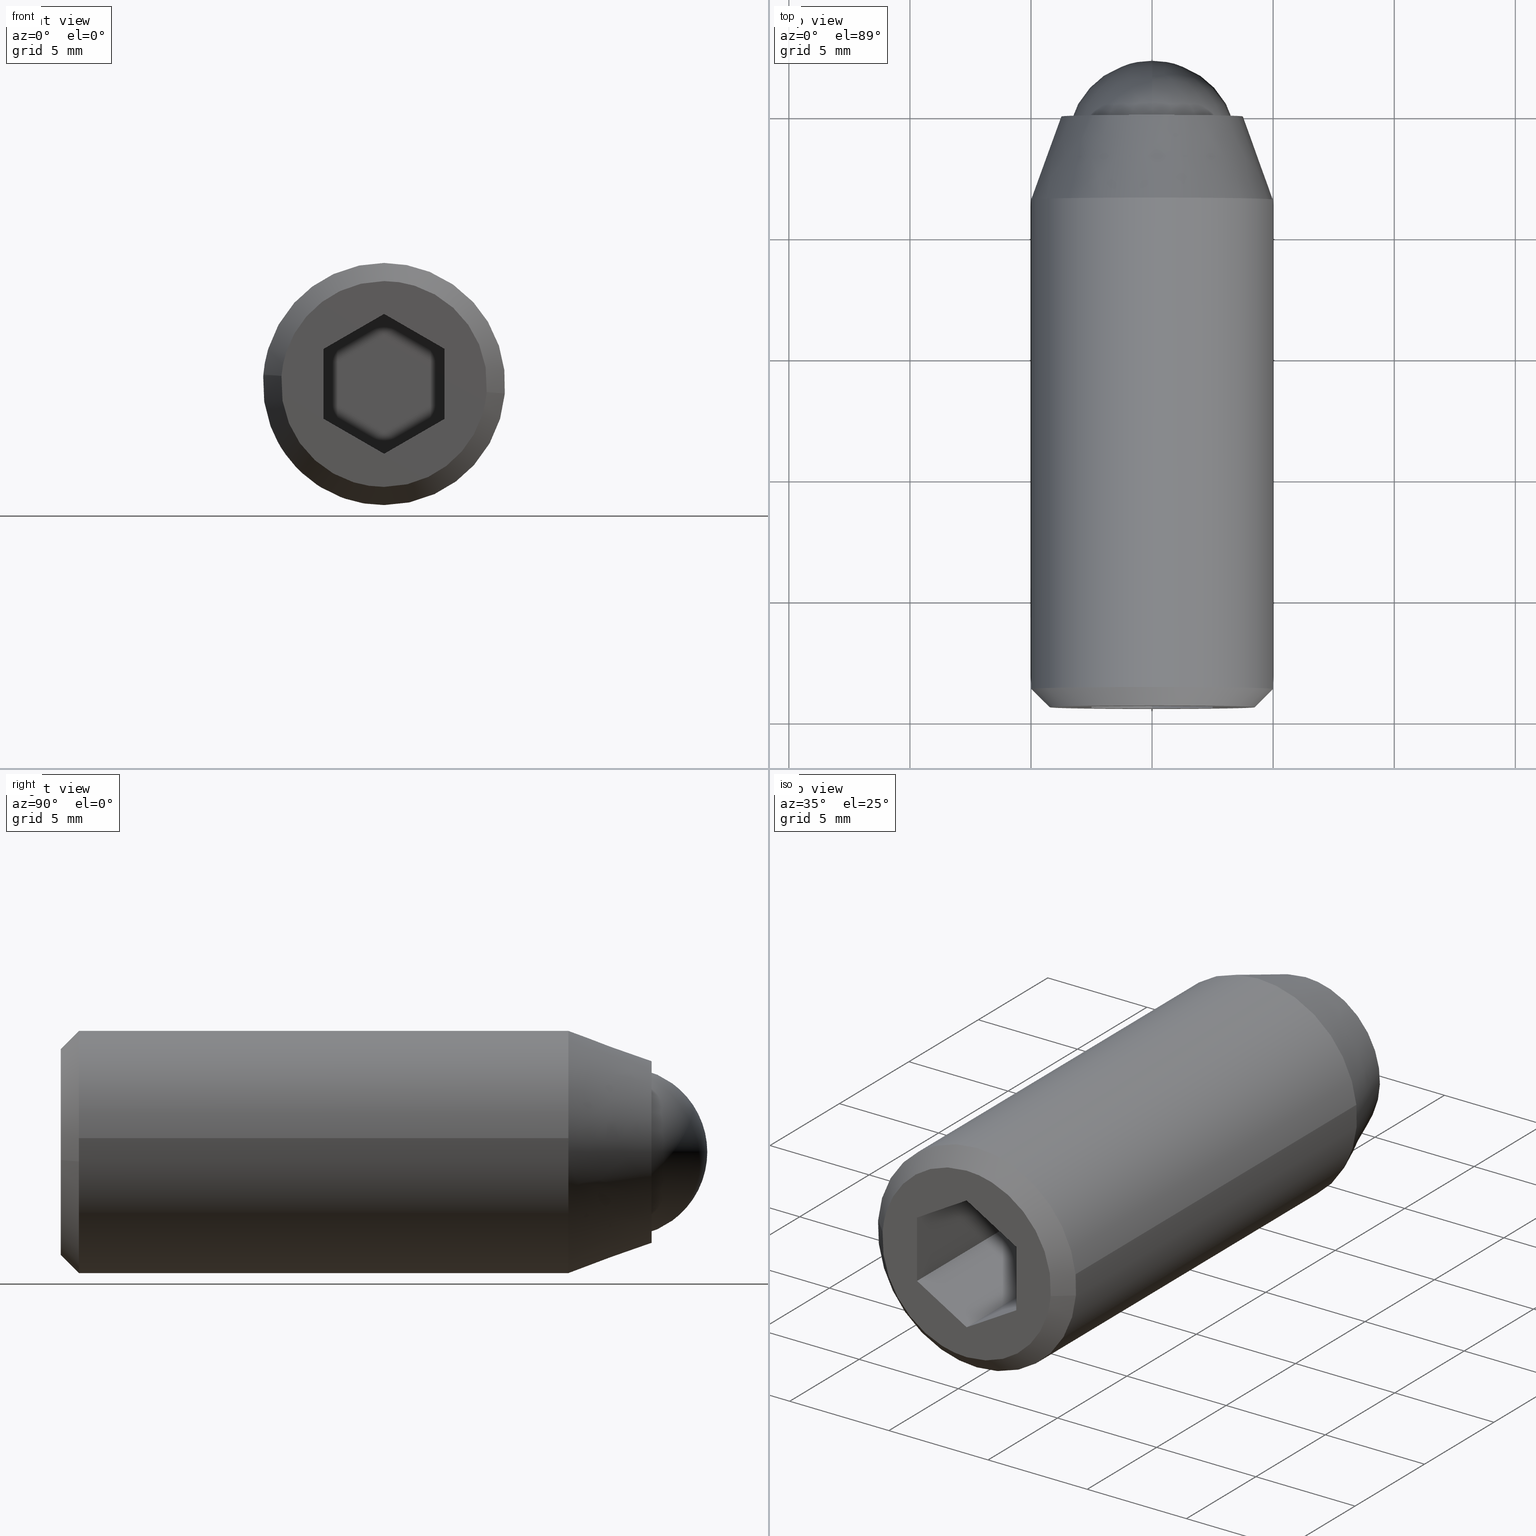
[diagram: canonical four-view strip — front | top / right | iso, engineering-drawing reading convention]
A machine part, canonical four-view strip (front | top / right | iso — engineering-drawing reading convention). The complete STEP part file that produces these views, byte-faithful:
ISO-10303-21;
HEADER;
/****************************************************************
 * Generated by software with PDE/Lib inside                    *
 * PDElib Version 4.4.1-0003, patched  Thursday August 19 11:58 *
 * International Technegroup Inc. (www.iti-oh.com)              *
 ****************************************************************/
FILE_DESCRIPTION((''),'2;1');
FILE_NAME('','2005-07-15T11:45:33',(''),(''),'','CADfix','');
FILE_SCHEMA(('AUTOMOTIVE_DESIGN'));
ENDSEC;
DATA;
#5=APPLICATION_CONTEXT('automotive design');
#6=APPLICATION_PROTOCOL_DEFINITION('Draft International Standard','automotive_design',1998,#5);
#7=PRODUCT_CONTEXT('None',#5,'mechanical');
#8=PRODUCT('body','','None',(#7));
#9=PRODUCT_RELATED_PRODUCT_CATEGORY('part','description',(#8));
#10=PRODUCT_DEFINITION_FORMATION('None','None',#8);
#11=PRODUCT_DEFINITION_CONTEXT('part definition',#5,'design');
#12=PRODUCT_DEFINITION('None','None',#10,#11);
#18=(NAMED_UNIT(*)PLANE_ANGLE_UNIT()SI_UNIT($,.RADIAN.));
#19=DIMENSIONAL_EXPONENTS(0.0,0.0,0.0,0.0,0.0,0.0,0.0);
#20=PLANE_ANGLE_MEASURE_WITH_UNIT(PLANE_ANGLE_MEASURE(0.017453292500000),#18);
#24=(CONVERSION_BASED_UNIT('DEGREE',#20)NAMED_UNIT(#19)PLANE_ANGLE_UNIT());
#28=(NAMED_UNIT(*)SI_UNIT($,.STERADIAN.)SOLID_ANGLE_UNIT());
#32=(LENGTH_UNIT()NAMED_UNIT(*)SI_UNIT(.MILLI.,.METRE.));
#34=UNCERTAINTY_MEASURE_WITH_UNIT(LENGTH_MEASURE(0.001000000000000),#32,'DISTANCE_ACCURACY_VALUE','');
#36=(GEOMETRIC_REPRESENTATION_CONTEXT(3)GLOBAL_UNCERTAINTY_ASSIGNED_CONTEXT((#34))GLOBAL_UNIT_ASSIGNED_CONTEXT((#24,#28,#32))REPRESENTATION_CONTEXT('None','None'));
#37=AXIS2_PLACEMENT_3D('',#38,#39,#40);
#38=CARTESIAN_POINT('',(0.0,0.0,0.0));
#39=DIRECTION('',(0.0,0.0,1.0));
#40=DIRECTION('',(1.0,0.0,0.0));
#41=ADVANCED_BREP_SHAPE_REPRESENTATION('',(#37,#949,#1160),#36);
#42=PRODUCT_DEFINITION_SHAPE('','',#12);
#43=SHAPE_DEFINITION_REPRESENTATION(#42,#41);
#44=CARTESIAN_POINT('',(-3.475533342272832,0.125000000000000,0.413119821298655));
#45=CARTESIAN_POINT('',(-3.487356654070120,0.125000000000000,0.313651550232922));
#46=CARTESIAN_POINT('',(-3.493471794476533,0.125000000000000,0.213669888371999));
#47=CARTESIAN_POINT('',(-3.707141682848533,0.125000000000000,-3.279801906104533));
#48=CARTESIAN_POINT('',(-0.213669888371999,0.125000000000000,-3.493471794476533));
#49=CARTESIAN_POINT('',(3.279801906104533,0.125000000000000,-3.707141682848533));
#50=CARTESIAN_POINT('',(3.493471794476533,0.125000000000000,-0.213669888371999));
#51=CARTESIAN_POINT('',(-3.475533342272832,-5.128125000000002,0.413119821298655));
#52=CARTESIAN_POINT('',(-3.487356654070120,-5.128125000000001,0.313651550232922));
#53=CARTESIAN_POINT('',(-3.493471794476533,-5.128125000000001,0.213669888371999));
#54=CARTESIAN_POINT('',(-3.707141682848533,-5.128125000000001,-3.279801906104533));
#55=CARTESIAN_POINT('',(-0.213669888371999,-5.128125000000001,-3.493471794476533));
#56=CARTESIAN_POINT('',(3.279801906104533,-5.128125000000001,-3.707141682848533));
#57=CARTESIAN_POINT('',(3.493471794476533,-5.128125000000001,-0.213669888371999));
#65=(BOUNDED_SURFACE()B_SPLINE_SURFACE(2,1,((#44,#51),(#45,#52),(#46,#53),(#47,#54),(#48,#55),(#49,#56),(#50,#57)),.UNSPECIFIED.,.F.,.F.,.U.)B_SPLINE_SURFACE_WITH_KNOTS((3,2,2,3),(2,2),(0.0,0.231959594928934,6.030949468152262,11.829939341375590),(0.0,5.253125000000002),.UNSPECIFIED.)GEOMETRIC_REPRESENTATION_ITEM()RATIONAL_B_SPLINE_SURFACE(((0.977505800795127,0.977505800795127),(0.988284271247462,0.988284271247462),(1.0,1.0),(0.707106781186548,0.707106781186548),(1.0,1.0),(0.707106781186548,0.707106781186548),(1.0,1.0)))REPRESENTATION_ITEM('')SURFACE());
#66=CARTESIAN_POINT('',(-3.475533838674169,-5.000000000000036,0.413115645083919));
#67=VERTEX_POINT('',#66);
#68=CARTESIAN_POINT('',(0.0,-5.0,-3.500000000000000));
#69=VERTEX_POINT('',#68);
#70=CARTESIAN_POINT('',(-3.475533838674170,-5.000000000000035,0.413115645083919));
#71=CARTESIAN_POINT('',(-3.500000000000000,-5.0,0.207282308599489));
#72=CARTESIAN_POINT('',(-3.500000000000000,-5.0,0.0));
#73=CARTESIAN_POINT('',(-3.500000000000000,-4.999999999999999,-3.500000000000000));
#74=CARTESIAN_POINT('',(0.0,-5.0,-3.500000000000000));
#82=(BOUNDED_CURVE()B_SPLINE_CURVE(2,(#70,#71,#72,#73,#74),.UNSPECIFIED.,.F.,.U.)B_SPLINE_CURVE_WITH_KNOTS((3,2,3),(0.229562676590638,0.250000000000000,0.500000000000000),.UNSPECIFIED.)CURVE()GEOMETRIC_REPRESENTATION_ITEM()RATIONAL_B_SPLINE_CURVE((0.956027152223570,0.976056186250801,1.0,0.707106781186547,1.0))REPRESENTATION_ITEM(''));
#83=EDGE_CURVE('',#67,#69,#82,.T.);
#84=ORIENTED_EDGE('',*,*,#83,.T.);
#85=CARTESIAN_POINT('',(3.493472099492551,-4.999999999999960,-0.213664901287368));
#86=VERTEX_POINT('',#85);
#87=CARTESIAN_POINT('',(0.0,-5.0,-3.500000000000000));
#88=CARTESIAN_POINT('',(3.292475943103280,-5.0,-3.500000000000000));
#89=CARTESIAN_POINT('',(3.493472099492551,-4.999999999999960,-0.213664901287368));
#97=(BOUNDED_CURVE()B_SPLINE_CURVE(2,(#87,#88,#89),.UNSPECIFIED.,.F.,.U.)B_SPLINE_CURVE_WITH_KNOTS((3,3),(0.500000000000000,0.739333208560145),.UNSPECIFIED.)CURVE()GEOMETRIC_REPRESENTATION_ITEM()RATIONAL_B_SPLINE_CURVE((1.0,0.719603704703471,0.976072569580511))REPRESENTATION_ITEM(''));
#98=EDGE_CURVE('',#69,#86,#97,.T.);
#99=ORIENTED_EDGE('',*,*,#98,.T.);
#100=CARTESIAN_POINT('',(3.493472095733746,-1.110223E-016,-0.213664962746162));
#101=VERTEX_POINT('',#100);
#102=CARTESIAN_POINT('',(3.493472095733746,-1.110223E-016,-0.213664962746162));
#103=CARTESIAN_POINT('',(3.493472099492551,-4.999999999999960,-0.213664901287368));
#104=QUASI_UNIFORM_CURVE('',1,(#102,#103),.UNSPECIFIED.,.F.,.U.);
#105=EDGE_CURVE('',#101,#86,#104,.T.);
#106=ORIENTED_EDGE('',*,*,#105,.F.);
#107=CARTESIAN_POINT('',(0.0,0.0,-3.500000000000000));
#108=VERTEX_POINT('',#107);
#109=CARTESIAN_POINT('',(0.0,0.0,-3.500000000000000));
#110=CARTESIAN_POINT('',(3.292475885072275,0.0,-3.500000000000000));
#111=CARTESIAN_POINT('',(3.493472095733746,-1.110223E-016,-0.213664962746162));
#119=(BOUNDED_CURVE()B_SPLINE_CURVE(2,(#109,#110,#111),.UNSPECIFIED.,.F.,.U.)B_SPLINE_CURVE_WITH_KNOTS((3,3),(0.500000000000000,0.739333205524620),.UNSPECIFIED.)CURVE()GEOMETRIC_REPRESENTATION_ITEM()RATIONAL_B_SPLINE_CURVE((1.0,0.719603708259810,0.976072563074789))REPRESENTATION_ITEM(''));
#120=EDGE_CURVE('',#108,#101,#119,.T.);
#121=ORIENTED_EDGE('',*,*,#120,.F.);
#122=CARTESIAN_POINT('',(-3.475533832542125,-1.135771E-016,0.413115696673206));
#123=VERTEX_POINT('',#122);
#124=CARTESIAN_POINT('',(-3.475533832542125,-1.135771E-016,0.413115696673206));
#125=CARTESIAN_POINT('',(-3.500000000000000,0.0,0.207282334666821));
#126=CARTESIAN_POINT('',(-3.500000000000000,0.0,0.0));
#127=CARTESIAN_POINT('',(-3.500000000000000,0.0,-3.500000000000000));
#128=CARTESIAN_POINT('',(0.0,0.0,-3.500000000000000));
#136=(BOUNDED_CURVE()B_SPLINE_CURVE(2,(#124,#125,#126,#127,#128),.UNSPECIFIED.,.F.,.U.)B_SPLINE_CURVE_WITH_KNOTS((3,2,3),(0.229562674082027,0.250000000000000,0.500000000000000),.UNSPECIFIED.)CURVE()GEOMETRIC_REPRESENTATION_ITEM()RATIONAL_B_SPLINE_CURVE((0.956027147306581,0.976056183311781,1.0,0.707106781186547,1.0))REPRESENTATION_ITEM(''));
#137=EDGE_CURVE('',#123,#108,#136,.T.);
#138=ORIENTED_EDGE('',*,*,#137,.F.);
#139=CARTESIAN_POINT('',(-3.475533832542125,-1.135771E-016,0.413115696673206));
#140=CARTESIAN_POINT('',(-3.475533838674169,-5.000000000000036,0.413115645083919));
#141=QUASI_UNIFORM_CURVE('',1,(#139,#140),.UNSPECIFIED.,.F.,.U.);
#142=EDGE_CURVE('',#123,#67,#141,.T.);
#143=ORIENTED_EDGE('',*,*,#142,.T.);
#144=EDGE_LOOP('',(#84,#99,#106,#121,#138,#143));
#145=FACE_OUTER_BOUND('',#144,.T.);
#146=ADVANCED_FACE('',(#145),#65,.F.);
#147=CARTESIAN_POINT('',(3.493471794476533,0.125000000000000,-0.213669888371999));
#148=CARTESIAN_POINT('',(3.707141682848533,0.125000000000000,3.279801906104533));
#149=CARTESIAN_POINT('',(0.213669888371999,0.125000000000000,3.493471794476533));
#150=CARTESIAN_POINT('',(-3.085402217938253,0.125000000000000,3.695251688563845));
#151=CARTESIAN_POINT('',(-3.475533342272832,0.125000000000000,0.413119821298655));
#152=CARTESIAN_POINT('',(3.493471794476533,-5.128125000000001,-0.213669888371999));
#153=CARTESIAN_POINT('',(3.707141682848533,-5.128125000000001,3.279801906104533));
#154=CARTESIAN_POINT('',(0.213669888371999,-5.128125000000001,3.493471794476533));
#155=CARTESIAN_POINT('',(-3.085402217938253,-5.128125000000000,3.695251688563845));
#156=CARTESIAN_POINT('',(-3.475533342272832,-5.128125000000002,0.413119821298655));
#164=(BOUNDED_SURFACE()B_SPLINE_SURFACE(2,1,((#147,#152),(#148,#153),(#149,#154),(#150,#155),(#151,#156)),.UNSPECIFIED.,.F.,.F.,.U.)B_SPLINE_SURFACE_WITH_KNOTS((3,2,3),(2,2),(0.0,5.798989873223329,11.366020151517720),(0.0,5.253125000000002),.UNSPECIFIED.)GEOMETRIC_REPRESENTATION_ITEM()RATIONAL_B_SPLINE_SURFACE(((1.0,1.0),(0.707106781186548,0.707106781186548),(1.0,1.0),(0.718822509939086,0.718822509939086),(0.977505800795127,0.977505800795127)))REPRESENTATION_ITEM('')SURFACE());
#165=CARTESIAN_POINT('',(0.0,-5.0,3.500000000000000));
#166=VERTEX_POINT('',#165);
#167=CARTESIAN_POINT('',(0.0,-5.0,3.500000000000000));
#168=CARTESIAN_POINT('',(-3.108614602445917,-5.000000000000001,3.500000000000000));
#169=CARTESIAN_POINT('',(-3.475533838674170,-5.000000000000035,0.413115645083919));
#177=(BOUNDED_CURVE()B_SPLINE_CURVE(2,(#167,#168,#169),.UNSPECIFIED.,.F.,.U.)B_SPLINE_CURVE_WITH_KNOTS((3,3),(0.0,0.229562676590638),.UNSPECIFIED.)CURVE()GEOMETRIC_REPRESENTATION_ITEM()RATIONAL_B_SPLINE_CURVE((1.0,0.731050594935746,0.956027152223570))REPRESENTATION_ITEM(''));
#178=EDGE_CURVE('',#166,#67,#177,.T.);
#179=ORIENTED_EDGE('',*,*,#178,.T.);
#180=ORIENTED_EDGE('',*,*,#142,.F.);
#181=CARTESIAN_POINT('',(0.0,0.0,3.500000000000000));
#182=VERTEX_POINT('',#181);
#183=CARTESIAN_POINT('',(0.0,0.0,3.500000000000000));
#184=CARTESIAN_POINT('',(-3.108614555978199,0.0,3.500000000000000));
#185=CARTESIAN_POINT('',(-3.475533832542125,-1.135771E-016,0.413115696673206));
#193=(BOUNDED_CURVE()B_SPLINE_CURVE(2,(#183,#184,#185),.UNSPECIFIED.,.F.,.U.)B_SPLINE_CURVE_WITH_KNOTS((3,3),(0.0,0.229562674082027),.UNSPECIFIED.)CURVE()GEOMETRIC_REPRESENTATION_ITEM()RATIONAL_B_SPLINE_CURVE((1.0,0.731050597874766,0.956027147306581))REPRESENTATION_ITEM(''));
#194=EDGE_CURVE('',#182,#123,#193,.T.);
#195=ORIENTED_EDGE('',*,*,#194,.F.);
#196=CARTESIAN_POINT('',(3.493472095733746,-1.110223E-016,-0.213664962746162));
#197=CARTESIAN_POINT('',(3.500000000000000,0.0,-0.106932201826920));
#198=CARTESIAN_POINT('',(3.500000000000000,0.0,0.0));
#199=CARTESIAN_POINT('',(3.500000000000000,0.0,3.500000000000000));
#200=CARTESIAN_POINT('',(0.0,0.0,3.500000000000000));
#208=(BOUNDED_CURVE()B_SPLINE_CURVE(2,(#196,#197,#198,#199,#200),.UNSPECIFIED.,.F.,.U.)B_SPLINE_CURVE_WITH_KNOTS((3,2,3),(0.739333205524620,0.750000000000000,1.0),.UNSPECIFIED.)CURVE()GEOMETRIC_REPRESENTATION_ITEM()RATIONAL_B_SPLINE_CURVE((0.976072563074789,0.987503072926737,1.0,0.707106781186547,1.0))REPRESENTATION_ITEM(''));
#209=EDGE_CURVE('',#101,#182,#208,.T.);
#210=ORIENTED_EDGE('',*,*,#209,.F.);
#211=ORIENTED_EDGE('',*,*,#105,.T.);
#212=CARTESIAN_POINT('',(3.493472099492551,-4.999999999999960,-0.213664901287368));
#213=CARTESIAN_POINT('',(3.500000000000000,-5.000000000000001,-0.106932171011368));
#214=CARTESIAN_POINT('',(3.500000000000000,-5.0,0.0));
#215=CARTESIAN_POINT('',(3.500000000000000,-4.999999999999999,3.500000000000000));
#216=CARTESIAN_POINT('',(0.0,-5.0,3.500000000000000));
#224=(BOUNDED_CURVE()B_SPLINE_CURVE(2,(#212,#213,#214,#215,#216),.UNSPECIFIED.,.F.,.U.)B_SPLINE_CURVE_WITH_KNOTS((3,2,3),(0.739333208560145,0.750000000000000,1.0),.UNSPECIFIED.)CURVE()GEOMETRIC_REPRESENTATION_ITEM()RATIONAL_B_SPLINE_CURVE((0.976072569580511,0.987503076483076,1.0,0.707106781186547,1.0))REPRESENTATION_ITEM(''));
#225=EDGE_CURVE('',#86,#166,#224,.T.);
#226=ORIENTED_EDGE('',*,*,#225,.T.);
#227=EDGE_LOOP('',(#179,#180,#195,#210,#211,#226));
#228=FACE_OUTER_BOUND('',#227,.T.);
#229=ADVANCED_FACE('',(#228),#164,.F.);
#230=CARTESIAN_POINT('',(-3.015807974484926,0.085858675000000,-2.175776602395827));
#231=CARTESIAN_POINT('',(-1.985204626224891,0.085858675000000,-3.604278863515390));
#232=CARTESIAN_POINT('',(-0.227024256395250,0.085858675000000,-3.711813781631319));
#233=CARTESIAN_POINT('',(3.484789525236069,0.085858675000000,-3.938838038026567));
#234=CARTESIAN_POINT('',(3.711813781631318,0.085858675000000,-0.227024256395250));
#235=CARTESIAN_POINT('',(3.938838038026567,0.085858675000000,3.484789525236068));
#236=CARTESIAN_POINT('',(0.227024256395250,0.085858675000000,3.711813781631317));
#237=CARTESIAN_POINT('',(-3.484789525236069,0.085858675000000,3.938838038026567));
#238=CARTESIAN_POINT('',(-3.711813781631318,0.085858675000000,0.227024256395249));
#239=CARTESIAN_POINT('',(-4.080844362112899,-3.522352141875000,-2.944154852107463));
#240=CARTESIAN_POINT('',(-2.686282142334985,-3.522352141875000,-4.877134487374501));
#241=CARTESIAN_POINT('',(-0.307198158706261,-3.522352141875000,-5.022645497371284));
#242=CARTESIAN_POINT('',(4.715447338665022,-3.522352141875000,-5.329843656077545));
#243=CARTESIAN_POINT('',(5.022645497371284,-3.522352141875000,-0.307198158706262));
#244=CARTESIAN_POINT('',(5.329843656077545,-3.522352141875000,4.715447338665022));
#245=CARTESIAN_POINT('',(0.307198158706261,-3.522352141875000,5.022645497371283));
#246=CARTESIAN_POINT('',(-4.715447338665022,-3.522352141875000,5.329843656077543));
#247=CARTESIAN_POINT('',(-5.022645497371284,-3.522352141875000,0.307198158706260));
#255=(BOUNDED_SURFACE()B_SPLINE_SURFACE(2,1,((#230,#239),(#231,#240),(#232,#241),(#233,#242),(#234,#243),(#235,#244),(#236,#245),(#237,#246),(#238,#247)),.UNSPECIFIED.,.F.,.F.,.U.)B_SPLINE_SURFACE_WITH_KNOTS((3,2,2,2,3),(2,2),(0.0,4.668911721678933,13.006254081819881,21.343596441960841,29.680938802101789),(0.0,3.839777720209247),.UNSPECIFIED.)GEOMETRIC_REPRESENTATION_ITEM()RATIONAL_B_SPLINE_SURFACE(((0.855662221768731,0.855662221768731),(0.835979797464467,0.835979797464467),(1.0,1.0),(0.707106781186548,0.707106781186548),(1.0,1.0),(0.707106781186548,0.707106781186548),(1.0,1.0),(0.707106781186548,0.707106781186548),(1.0,1.0)))REPRESENTATION_ITEM('')SURFACE());
#256=CARTESIAN_POINT('',(-3.041150898637995,-4.158979E-013,-2.194060439394151));
#257=VERTEX_POINT('',#256);
#258=CARTESIAN_POINT('',(0.0,0.0,-3.750000000000001));
#259=VERTEX_POINT('',#258);
#260=CARTESIAN_POINT('',(-3.041150898637995,-4.158979E-013,-2.194060439394150));
#261=CARTESIAN_POINT('',(-1.918606983585663,0.0,-3.750000000000000));
#262=CARTESIAN_POINT('',(0.0,0.0,-3.750000000000001));
#270=(BOUNDED_CURVE()B_SPLINE_CURVE(2,(#260,#261,#262),.UNSPECIFIED.,.F.,.U.)B_SPLINE_CURVE_WITH_KNOTS((3,3),(0.850743050382329,1.0),.UNSPECIFIED.)CURVE()GEOMETRIC_REPRESENTATION_ITEM()RATIONAL_B_SPLINE_CURVE((0.859068214727195,0.825134606384812,1.0))REPRESENTATION_ITEM(''));
#271=EDGE_CURVE('',#257,#259,#270,.T.);
#272=ORIENTED_EDGE('',*,*,#271,.T.);
#273=CARTESIAN_POINT('',(0.0,0.0,3.749999999999999));
#274=VERTEX_POINT('',#273);
#275=CARTESIAN_POINT('',(0.0,0.0,-3.750000000000001));
#276=CARTESIAN_POINT('',(3.750000000000000,0.0,-3.750000000000002));
#277=CARTESIAN_POINT('',(3.750000000000000,0.0,-7.898711E-016));
#278=CARTESIAN_POINT('',(3.750000000000000,0.0,3.749999999999999));
#279=CARTESIAN_POINT('',(0.0,0.0,3.749999999999999));
#287=(BOUNDED_CURVE()B_SPLINE_CURVE(2,(#275,#276,#277,#278,#279),.UNSPECIFIED.,.F.,.U.)B_SPLINE_CURVE_WITH_KNOTS((3,2,3),(0.0,0.250000000000000,0.500000000000000),.UNSPECIFIED.)CURVE()GEOMETRIC_REPRESENTATION_ITEM()RATIONAL_B_SPLINE_CURVE((1.0,0.707106781186547,1.0,0.707106781186547,1.0))REPRESENTATION_ITEM(''));
#288=EDGE_CURVE('',#259,#274,#287,.T.);
#289=ORIENTED_EDGE('',*,*,#288,.T.);
#290=CARTESIAN_POINT('',(-3.743005494082165,-5.431509E-012,0.228932023285429));
#291=VERTEX_POINT('',#290);
#292=CARTESIAN_POINT('',(0.0,0.0,3.749999999999999));
#293=CARTESIAN_POINT('',(-3.527647750840481,0.0,3.749999999999998));
#294=CARTESIAN_POINT('',(-3.743005494082165,-5.431509E-012,0.228932023285429));
#302=(BOUNDED_CURVE()B_SPLINE_CURVE(2,(#292,#293,#294),.UNSPECIFIED.,.F.,.U.)B_SPLINE_CURVE_WITH_KNOTS((3,3),(0.500000000000000,0.739332962239240),.UNSPECIFIED.)CURVE()GEOMETRIC_REPRESENTATION_ITEM()RATIONAL_B_SPLINE_CURVE((1.0,0.719603993286362,0.976072041667355))REPRESENTATION_ITEM(''));
#303=EDGE_CURVE('',#274,#291,#302,.T.);
#304=ORIENTED_EDGE('',*,*,#303,.T.);
#305=CARTESIAN_POINT('',(-4.990674234761062,-3.434346994595417,0.305238698078963));
#306=VERTEX_POINT('',#305);
#307=CARTESIAN_POINT('',(-3.743005494082165,-5.431509E-012,0.228932023285429));
#308=CARTESIAN_POINT('',(-4.990674234761062,-3.434346994595417,0.305238698078963));
#309=QUASI_UNIFORM_CURVE('',1,(#307,#308),.UNSPECIFIED.,.F.,.U.);
#310=EDGE_CURVE('',#291,#306,#309,.T.);
#311=ORIENTED_EDGE('',*,*,#310,.T.);
#312=CARTESIAN_POINT('',(0.0,-3.434347000000000,4.999999999999999));
#313=VERTEX_POINT('',#312);
#314=CARTESIAN_POINT('',(0.0,-3.434347000000000,4.999999999999999));
#315=CARTESIAN_POINT('',(-4.703534110934704,-3.434347000000000,4.999999999999999));
#316=CARTESIAN_POINT('',(-4.990674234761062,-3.434346994595417,0.305238698078963));
#324=(BOUNDED_CURVE()B_SPLINE_CURVE(2,(#314,#315,#316),.UNSPECIFIED.,.F.,.U.)B_SPLINE_CURVE_WITH_KNOTS((3,3),(0.500000000000000,0.739333100519220),.UNSPECIFIED.)CURVE()GEOMETRIC_REPRESENTATION_ITEM()RATIONAL_B_SPLINE_CURVE((1.0,0.719603831281288,0.976072338027853))REPRESENTATION_ITEM(''));
#325=EDGE_CURVE('',#313,#306,#324,.T.);
#326=ORIENTED_EDGE('',*,*,#325,.F.);
#327=CARTESIAN_POINT('',(4.967346893417139,-3.434347000000000,0.570495258870046));
#328=VERTEX_POINT('',#327);
#329=CARTESIAN_POINT('',(4.967346893417139,-3.434347000000000,0.570495258870046));
#330=CARTESIAN_POINT('',(4.458622315056616,-3.434347000000000,4.999999999999999));
#331=CARTESIAN_POINT('',(0.0,-3.434347000000000,4.999999999999999));
#339=(BOUNDED_CURVE()B_SPLINE_CURVE(2,(#329,#330,#331),.UNSPECIFIED.,.F.,.U.)B_SPLINE_CURVE_WITH_KNOTS((3,3),(0.269767481110062,0.500000000000000),.UNSPECIFIED.)CURVE()GEOMETRIC_REPRESENTATION_ITEM()RATIONAL_B_SPLINE_CURVE((0.957344278464731,0.730265825867189,1.0))REPRESENTATION_ITEM(''));
#340=EDGE_CURVE('',#328,#313,#339,.T.);
#341=ORIENTED_EDGE('',*,*,#340,.F.);
#342=CARTESIAN_POINT('',(0.0,-3.434347000000000,-5.000000000000001));
#343=VERTEX_POINT('',#342);
#344=CARTESIAN_POINT('',(0.0,-3.434347000000000,-5.000000000000001));
#345=CARTESIAN_POINT('',(5.000000000000001,-3.434347000000000,-5.000000000000002));
#346=CARTESIAN_POINT('',(5.0,-3.434347000000000,-7.898711E-016));
#347=CARTESIAN_POINT('',(5.0,-3.434347000000000,0.286182102906041));
#348=CARTESIAN_POINT('',(4.967346893417139,-3.434347000000000,0.570495258870046));
#356=(BOUNDED_CURVE()B_SPLINE_CURVE(2,(#344,#345,#346,#347,#348),.UNSPECIFIED.,.F.,.U.)B_SPLINE_CURVE_WITH_KNOTS((3,2,3),(0.0,0.250000000000000,0.269767481110062),.UNSPECIFIED.)CURVE()GEOMETRIC_REPRESENTATION_ITEM()RATIONAL_B_SPLINE_CURVE((1.0,0.707106781186548,1.0,0.976840955319359,0.957344278464731))REPRESENTATION_ITEM(''));
#357=EDGE_CURVE('',#343,#328,#356,.T.);
#358=ORIENTED_EDGE('',*,*,#357,.F.);
#359=CARTESIAN_POINT('',(-4.054867864852410,-3.434347000000233,-2.925413919189575));
#360=VERTEX_POINT('',#359);
#361=CARTESIAN_POINT('',(-4.054867864852410,-3.434347000000233,-2.925413919189575));
#362=CARTESIAN_POINT('',(-2.558142644784862,-3.434346999999999,-5.000000000000002));
#363=CARTESIAN_POINT('',(0.0,-3.434347000000000,-5.000000000000001));
#371=(BOUNDED_CURVE()B_SPLINE_CURVE(2,(#361,#362,#363),.UNSPECIFIED.,.F.,.U.)B_SPLINE_CURVE_WITH_KNOTS((3,3),(0.850743050382138,1.0),.UNSPECIFIED.)CURVE()GEOMETRIC_REPRESENTATION_ITEM()RATIONAL_B_SPLINE_CURVE((0.859068214727282,0.825134606384588,1.0))REPRESENTATION_ITEM(''));
#372=EDGE_CURVE('',#360,#343,#371,.T.);
#373=ORIENTED_EDGE('',*,*,#372,.F.);
#374=CARTESIAN_POINT('',(-3.041150898637995,-4.158979E-013,-2.194060439394151));
#375=CARTESIAN_POINT('',(-4.054867864852410,-3.434347000000233,-2.925413919189575));
#376=QUASI_UNIFORM_CURVE('',1,(#374,#375),.UNSPECIFIED.,.F.,.U.);
#377=EDGE_CURVE('',#257,#360,#376,.T.);
#378=ORIENTED_EDGE('',*,*,#377,.F.);
#379=EDGE_LOOP('',(#272,#289,#304,#311,#326,#341,#358,#373,#378));
#380=FACE_OUTER_BOUND('',#379,.T.);
#381=ADVANCED_FACE('',(#380),#255,.T.);
#382=CARTESIAN_POINT('',(-3.711813781631318,0.085858675000000,0.227024256395249));
#383=CARTESIAN_POINT('',(-3.792896532417209,0.085858675000000,-1.098667000558672));
#384=CARTESIAN_POINT('',(-3.015807974484926,0.085858675000000,-2.175776602395827));
#385=CARTESIAN_POINT('',(-5.022645497371284,-3.522352141875000,0.307198158706260));
#386=CARTESIAN_POINT('',(-5.132362723802361,-3.522352141875001,-1.486662636680336));
#387=CARTESIAN_POINT('',(-4.080844362112899,-3.522352141875000,-2.944154852107463));
#395=(BOUNDED_SURFACE()B_SPLINE_SURFACE(2,1,((#382,#385),(#383,#386),(#384,#387)),.UNSPECIFIED.,.F.,.F.,.U.)B_SPLINE_SURFACE_WITH_KNOTS((3,3),(2,2),(0.0,3.659389569803642),(0.0,3.839777720209246),.UNSPECIFIED.)GEOMETRIC_REPRESENTATION_ITEM()RATIONAL_B_SPLINE_SURFACE(((1.0,1.0),(0.871126983722081,0.871126983722081),(0.855662221768731,0.855662221768731)))REPRESENTATION_ITEM('')SURFACE());
#396=CARTESIAN_POINT('',(-3.743005494082165,-5.431509E-012,0.228932023285429));
#397=CARTESIAN_POINT('',(-3.750000000000001,0.0,0.114572862399386));
#398=CARTESIAN_POINT('',(-3.750000000000000,0.0,-7.898711E-016));
#399=CARTESIAN_POINT('',(-3.750000000000000,0.0,-1.211536420048224));
#400=CARTESIAN_POINT('',(-3.041150898637995,-4.158979E-013,-2.194060439394151));
#408=(BOUNDED_CURVE()B_SPLINE_CURVE(2,(#396,#397,#398,#399,#400),.UNSPECIFIED.,.F.,.U.)B_SPLINE_CURVE_WITH_KNOTS((3,2,3),(0.739332962239240,0.750000000000000,0.850743050382329),.UNSPECIFIED.)CURVE()GEOMETRIC_REPRESENTATION_ITEM()RATIONAL_B_SPLINE_CURVE((0.976072041667354,0.987502787900185,1.0,0.881972174801736,0.859068214727195))REPRESENTATION_ITEM(''));
#409=EDGE_CURVE('',#291,#257,#408,.T.);
#410=ORIENTED_EDGE('',*,*,#409,.T.);
#411=ORIENTED_EDGE('',*,*,#377,.T.);
#412=CARTESIAN_POINT('',(-4.990674234761062,-3.434346994595417,0.305238698078963));
#413=CARTESIAN_POINT('',(-4.999999999999999,-3.434347000000000,0.152761811148380));
#414=CARTESIAN_POINT('',(-5.0,-3.434347000000000,-7.898711E-016));
#415=CARTESIAN_POINT('',(-5.0,-3.434347000000000,-1.615381893394168));
#416=CARTESIAN_POINT('',(-4.054867864852411,-3.434347000000233,-2.925413919189575));
#424=(BOUNDED_CURVE()B_SPLINE_CURVE(2,(#412,#413,#414,#415,#416),.UNSPECIFIED.,.F.,.U.)B_SPLINE_CURVE_WITH_KNOTS((3,2,3),(0.739333100519220,0.750000000000000,0.850743050382138),.UNSPECIFIED.)CURVE()GEOMETRIC_REPRESENTATION_ITEM()RATIONAL_B_SPLINE_CURVE((0.976072338027853,0.987502949905259,1.0,0.881972174801959,0.859068214727281))REPRESENTATION_ITEM(''));
#425=EDGE_CURVE('',#306,#360,#424,.T.);
#426=ORIENTED_EDGE('',*,*,#425,.F.);
#427=ORIENTED_EDGE('',*,*,#310,.F.);
#428=EDGE_LOOP('',(#410,#411,#426,#427));
#429=FACE_OUTER_BOUND('',#428,.T.);
#430=ADVANCED_FACE('',(#429),#395,.T.);
#431=CARTESIAN_POINT('',(4.975395113979117,-2.928955674999999,0.500419776003076));
#432=CARTESIAN_POINT('',(4.971379498040641,-2.928955674999999,0.535383557648189));
#433=CARTESIAN_POINT('',(4.489075762930407,-2.928955674999998,4.734779799566036));
#434=CARTESIAN_POINT('',(0.305242697674285,-2.928955674999999,4.990673992109333));
#435=CARTESIAN_POINT('',(-4.685431294435048,-2.928955674999999,5.295916689783618));
#436=CARTESIAN_POINT('',(-4.992697433181544,-2.928955674999999,0.272159728579269));
#437=CARTESIAN_POINT('',(-4.994709792734736,-2.928955674999997,0.239257940718600));
#438=CARTESIAN_POINT('',(4.975395113979117,-24.168026108125002,0.500419776003076));
#439=CARTESIAN_POINT('',(4.971379498040641,-24.168026108125005,0.535383557648189));
#440=CARTESIAN_POINT('',(4.489075762930407,-24.168026108125002,4.734779799566036));
#441=CARTESIAN_POINT('',(0.305242697674285,-24.168026108125009,4.990673992109333));
#442=CARTESIAN_POINT('',(-4.685431294435048,-24.168026108125009,5.295916689783618));
#443=CARTESIAN_POINT('',(-4.992697433181544,-24.168026108125019,0.272159728579269));
#444=CARTESIAN_POINT('',(-4.994709792734736,-24.168026108124998,0.239257940718600));
#452=(BOUNDED_SURFACE()B_SPLINE_SURFACE(2,1,((#431,#438),(#432,#439),(#433,#440),(#434,#441),(#435,#442),(#436,#443),(#437,#444)),.UNSPECIFIED.,.F.,.F.,.U.)B_SPLINE_SURFACE_WITH_KNOTS((3,1,2,1,3),(2,2),(0.0,0.077881138398475,7.368039836164944,15.652311083626840,15.730187994129020),(0.0,21.239070433125018),.UNSPECIFIED.)GEOMETRIC_REPRESENTATION_ITEM()RATIONAL_B_SPLINE_SURFACE(((0.942326293549293,0.942326293549293),(0.940233622867946,0.940233622867946),(0.742253967444162,0.742253967444162),(1.0,1.0),(0.707106781186548,0.707106781186548),(1.002753364575697,1.002753364575697),(1.005506729151395,1.005506729151395)))REPRESENTATION_ITEM('')SURFACE());
#453=CARTESIAN_POINT('',(4.967345967176772,-23.649999999999999,0.570503323717449));
#454=VERTEX_POINT('',#453);
#455=CARTESIAN_POINT('',(0.0,-23.649999999999999,4.999999999999999));
#456=VERTEX_POINT('',#455);
#457=CARTESIAN_POINT('',(4.967345967176772,-23.650000000000006,0.570503323717449));
#458=CARTESIAN_POINT('',(4.458615028566292,-23.650000000000009,5.0));
#459=CARTESIAN_POINT('',(0.0,-23.649999999999999,4.999999999999999));
#467=(BOUNDED_CURVE()B_SPLINE_CURVE(2,(#457,#458,#459),.UNSPECIFIED.,.F.,.U.)B_SPLINE_CURVE_WITH_KNOTS((3,3),(0.269767755877675,0.500000000000000),.UNSPECIFIED.)CURVE()GEOMETRIC_REPRESENTATION_ITEM()RATIONAL_B_SPLINE_CURVE((0.957343736458560,0.730266147777471,1.0))REPRESENTATION_ITEM(''));
#468=EDGE_CURVE('',#454,#456,#467,.T.);
#469=ORIENTED_EDGE('',*,*,#468,.F.);
#470=CARTESIAN_POINT('',(4.967346893417139,-3.434347000000000,0.570495258870046));
#471=CARTESIAN_POINT('',(4.967345967176772,-23.649999999999999,0.570503323717449));
#472=QUASI_UNIFORM_CURVE('',1,(#470,#471),.UNSPECIFIED.,.F.,.U.);
#473=EDGE_CURVE('',#328,#454,#472,.T.);
#474=ORIENTED_EDGE('',*,*,#473,.F.);
#475=ORIENTED_EDGE('',*,*,#340,.T.);
#476=ORIENTED_EDGE('',*,*,#325,.T.);
#477=CARTESIAN_POINT('',(-4.990674023527537,-23.649999999999999,0.305242183990346));
#478=VERTEX_POINT('',#477);
#479=CARTESIAN_POINT('',(-4.990674234761062,-3.434346994595417,0.305238698078963));
#480=CARTESIAN_POINT('',(-4.990674023527537,-23.649999999999999,0.305242183990346));
#481=QUASI_UNIFORM_CURVE('',1,(#479,#480),.UNSPECIFIED.,.F.,.U.);
#482=EDGE_CURVE('',#306,#478,#481,.T.);
#483=ORIENTED_EDGE('',*,*,#482,.T.);
#484=CARTESIAN_POINT('',(-4.984586668668259,-23.649999999993430,0.392295478689817));
#485=VERTEX_POINT('',#484);
#486=CARTESIAN_POINT('',(-4.984586668668259,-23.649999999993430,0.392295478689817));
#487=CARTESIAN_POINT('',(-4.988010219821137,-23.650000000000002,0.348795136743886));
#488=CARTESIAN_POINT('',(-4.990674023527537,-23.650000000000002,0.305242183990346));
#496=(BOUNDED_CURVE()B_SPLINE_CURVE(2,(#486,#487,#488),.UNSPECIFIED.,.F.,.U.)B_SPLINE_CURVE_WITH_KNOTS((3,3),(0.736331300629323,0.739332997762028),.UNSPECIFIED.)CURVE()GEOMETRIC_REPRESENTATION_ITEM()RATIONAL_B_SPLINE_CURVE((0.969723356164627,0.972855512625487,0.976072117799462))REPRESENTATION_ITEM(''));
#497=EDGE_CURVE('',#485,#478,#496,.T.);
#498=ORIENTED_EDGE('',*,*,#497,.F.);
#499=CARTESIAN_POINT('',(0.0,-23.649999999999999,4.999999999999999));
#500=CARTESIAN_POINT('',(-4.621952458197871,-23.649999999999999,4.999999999999999));
#501=CARTESIAN_POINT('',(-4.984586668668259,-23.649999999993423,0.392295478689817));
#509=(BOUNDED_CURVE()B_SPLINE_CURVE(2,(#499,#500,#501),.UNSPECIFIED.,.F.,.U.)B_SPLINE_CURVE_WITH_KNOTS((3,3),(0.500000000000000,0.736331300629322),.UNSPECIFIED.)CURVE()GEOMETRIC_REPRESENTATION_ITEM()RATIONAL_B_SPLINE_CURVE((1.0,0.723120658609233,0.969723356164627))REPRESENTATION_ITEM(''));
#510=EDGE_CURVE('',#456,#485,#509,.T.);
#511=ORIENTED_EDGE('',*,*,#510,.F.);
#512=EDGE_LOOP('',(#469,#474,#475,#476,#483,#498,#511));
#513=FACE_OUTER_BOUND('',#512,.T.);
#514=ADVANCED_FACE('',(#513),#452,.T.);
#515=CARTESIAN_POINT('',(-4.990673992109334,-2.928955674999999,0.305242697674284));
#516=CARTESIAN_POINT('',(-5.295916689783620,-2.928955674999999,-4.685431294435050));
#517=CARTESIAN_POINT('',(-0.305242697674285,-2.928955674999999,-4.990673992109334));
#518=CARTESIAN_POINT('',(4.685431294435048,-2.928955674999999,-5.295916689783620));
#519=CARTESIAN_POINT('',(4.990673992109334,-2.928955674999999,-0.305242697674286));
#520=CARTESIAN_POINT('',(5.017518191973888,-2.928955674999998,0.133656090482733));
#521=CARTESIAN_POINT('',(4.967345967178567,-2.928955674999999,0.570503323701801));
#522=CARTESIAN_POINT('',(-4.990673992109334,-24.168026108125009,0.305242697674284));
#523=CARTESIAN_POINT('',(-5.295916689783620,-24.168026108125009,-4.685431294435050));
#524=CARTESIAN_POINT('',(-0.305242697674285,-24.168026108125009,-4.990673992109334));
#525=CARTESIAN_POINT('',(4.685431294435048,-24.168026108125009,-5.295916689783620));
#526=CARTESIAN_POINT('',(4.990673992109334,-24.168026108125009,-0.305242697674286));
#527=CARTESIAN_POINT('',(5.017518191973888,-24.168026108125009,0.133656090482733));
#528=CARTESIAN_POINT('',(4.967345967178567,-24.168026108125009,0.570503323701801));
#536=(BOUNDED_SURFACE()B_SPLINE_SURFACE(2,1,((#515,#522),(#516,#523),(#517,#524),(#518,#525),(#519,#526),(#520,#527),(#521,#528)),.UNSPECIFIED.,.F.,.F.,.U.)B_SPLINE_SURFACE_WITH_KNOTS((3,2,2,3),(2,2),(0.0,8.284271247461899,16.568542494923800,17.562655044619230),(0.0,21.239070433125011),.UNSPECIFIED.)GEOMETRIC_REPRESENTATION_ITEM()RATIONAL_B_SPLINE_SURFACE(((1.0,1.0),(0.707106781186548,0.707106781186548),(1.0,1.0),(0.707106781186548,0.707106781186548),(1.0,1.0),(0.964852813742386,0.964852813742386),(0.938140952186599,0.938140952186599)))REPRESENTATION_ITEM('')SURFACE());
#537=CARTESIAN_POINT('',(4.984586668668258,-23.649999999993430,-0.392295478689819));
#538=VERTEX_POINT('',#537);
#539=CARTESIAN_POINT('',(4.984586668668258,-23.649999999993430,-0.392295478689819));
#540=CARTESIAN_POINT('',(5.0,-23.650000000000009,-0.196450535088657));
#541=CARTESIAN_POINT('',(5.0,-23.649999999999999,-7.898711E-016));
#542=CARTESIAN_POINT('',(5.0,-23.650000000000009,0.286186175142261));
#543=CARTESIAN_POINT('',(4.967345967176772,-23.649999999999999,0.570503323717449));
#551=(BOUNDED_CURVE()B_SPLINE_CURVE(2,(#539,#540,#541,#542,#543),.UNSPECIFIED.,.F.,.U.)B_SPLINE_CURVE_WITH_KNOTS((3,2,3),(0.236331300629323,0.250000000000000,0.269767755877675),.UNSPECIFIED.)CURVE()GEOMETRIC_REPRESENTATION_ITEM()RATIONAL_B_SPLINE_CURVE((0.969723356164627,0.983986122577316,1.0,0.976840633409077,0.957343736458561))REPRESENTATION_ITEM(''));
#552=EDGE_CURVE('',#538,#454,#551,.T.);
#553=ORIENTED_EDGE('',*,*,#552,.F.);
#554=CARTESIAN_POINT('',(0.0,-23.649999999999999,-5.000000000000001));
#555=VERTEX_POINT('',#554);
#556=CARTESIAN_POINT('',(0.0,-23.649999999999999,-5.000000000000001));
#557=CARTESIAN_POINT('',(4.621952458197886,-23.650000000000006,-5.000000000000001));
#558=CARTESIAN_POINT('',(4.984586668668258,-23.649999999993426,-0.392295478689819));
#566=(BOUNDED_CURVE()B_SPLINE_CURVE(2,(#556,#557,#558),.UNSPECIFIED.,.F.,.U.)B_SPLINE_CURVE_WITH_KNOTS((3,3),(0.0,0.236331300629323),.UNSPECIFIED.)CURVE()GEOMETRIC_REPRESENTATION_ITEM()RATIONAL_B_SPLINE_CURVE((1.0,0.723120658609232,0.969723356164628))REPRESENTATION_ITEM(''));
#567=EDGE_CURVE('',#555,#538,#566,.T.);
#568=ORIENTED_EDGE('',*,*,#567,.F.);
#569=CARTESIAN_POINT('',(-4.990674023527537,-23.649999999999995,0.305242183990346));
#570=CARTESIAN_POINT('',(-5.000000000000001,-23.650000000000006,0.152763301368691));
#571=CARTESIAN_POINT('',(-5.0,-23.649999999999999,-7.898711E-016));
#572=CARTESIAN_POINT('',(-5.000000000000001,-23.649999999999999,-5.000000000000002));
#573=CARTESIAN_POINT('',(0.0,-23.649999999999999,-5.000000000000001));
#581=(BOUNDED_CURVE()B_SPLINE_CURVE(2,(#569,#570,#571,#572,#573),.UNSPECIFIED.,.F.,.U.)B_SPLINE_CURVE_WITH_KNOTS((3,2,3),(0.739332997762027,0.750000000000000,1.0),.UNSPECIFIED.)CURVE()GEOMETRIC_REPRESENTATION_ITEM()RATIONAL_B_SPLINE_CURVE((0.976072117799462,0.987502829517720,1.0,0.707106781186548,1.0))REPRESENTATION_ITEM(''));
#582=EDGE_CURVE('',#478,#555,#581,.T.);
#583=ORIENTED_EDGE('',*,*,#582,.F.);
#584=ORIENTED_EDGE('',*,*,#482,.F.);
#585=ORIENTED_EDGE('',*,*,#425,.T.);
#586=ORIENTED_EDGE('',*,*,#372,.T.);
#587=ORIENTED_EDGE('',*,*,#357,.T.);
#588=ORIENTED_EDGE('',*,*,#473,.T.);
#589=EDGE_LOOP('',(#553,#568,#583,#584,#585,#586,#587,#588));
#590=FACE_OUTER_BOUND('',#589,.T.);
#591=ADVANCED_FACE('',(#590),#536,.T.);
#592=CARTESIAN_POINT('',(4.218206468358295,-24.418750000000010,-0.331980048798447));
#593=CARTESIAN_POINT('',(3.886226419559848,-24.418750000000003,-4.550186517156742));
#594=CARTESIAN_POINT('',(-0.331980048798446,-24.418750000000010,-4.218206468358296));
#595=CARTESIAN_POINT('',(-4.550186517156740,-24.418750000000003,-3.886226419559850));
#596=CARTESIAN_POINT('',(-4.218206468358295,-24.418750000000010,0.331980048798446));
#597=CARTESIAN_POINT('',(5.003746173673326,-23.630781249999998,-0.393803364385248));
#598=CARTESIAN_POINT('',(4.609942809288079,-23.630781249999998,-5.397549538058574));
#599=CARTESIAN_POINT('',(-0.393803364385248,-23.630781249999998,-5.003746173673327));
#600=CARTESIAN_POINT('',(-5.397549538058574,-23.630781249999998,-4.609942809288080));
#601=CARTESIAN_POINT('',(-5.003746173673326,-23.630781249999998,0.393803364385247));
#609=(BOUNDED_SURFACE()B_SPLINE_SURFACE(2,1,((#592,#597),(#593,#598),(#594,#599),(#595,#600),(#596,#601)),.UNSPECIFIED.,.F.,.F.,.U.)B_SPLINE_SURFACE_WITH_KNOTS((3,2,3),(2,2),(0.0,8.316113915069339,16.632227830138682),(0.0,1.0),.UNSPECIFIED.)GEOMETRIC_REPRESENTATION_ITEM()RATIONAL_B_SPLINE_SURFACE(((1.0,1.0),(0.707106781186548,0.707106781186548),(1.0,1.0),(0.707106781186548,0.707106781186548),(1.0,1.0)))REPRESENTATION_ITEM('')SURFACE());
#610=ORIENTED_EDGE('',*,*,#567,.T.);
#611=CARTESIAN_POINT('',(4.236898668368168,-24.399999999994058,-0.333451156889005));
#612=VERTEX_POINT('',#611);
#613=CARTESIAN_POINT('',(4.236898668368168,-24.399999999994058,-0.333451156889005));
#614=CARTESIAN_POINT('',(4.984586668668258,-23.649999999993430,-0.392295478689819));
#615=QUASI_UNIFORM_CURVE('',1,(#613,#614),.UNSPECIFIED.,.F.,.U.);
#616=EDGE_CURVE('',#612,#538,#615,.T.);
#617=ORIENTED_EDGE('',*,*,#616,.F.);
#618=CARTESIAN_POINT('',(0.0,-24.399999999999999,-4.250000000000001));
#619=VERTEX_POINT('',#618);
#620=CARTESIAN_POINT('',(0.0,-24.399999999999999,-4.250000000000001));
#621=CARTESIAN_POINT('',(3.928659589463306,-24.399999999999999,-4.250000000000001));
#622=CARTESIAN_POINT('',(4.236898668368169,-24.399999999994051,-0.333451156889005));
#630=(BOUNDED_CURVE()B_SPLINE_CURVE(2,(#620,#621,#622),.UNSPECIFIED.,.F.,.U.)B_SPLINE_CURVE_WITH_KNOTS((3,3),(0.0,0.236331300629110),.UNSPECIFIED.)CURVE()GEOMETRIC_REPRESENTATION_ITEM()RATIONAL_B_SPLINE_CURVE((1.0,0.723120658609481,0.969723356164183))REPRESENTATION_ITEM(''));
#631=EDGE_CURVE('',#619,#612,#630,.T.);
#632=ORIENTED_EDGE('',*,*,#631,.F.);
#633=CARTESIAN_POINT('',(-4.236898668368170,-24.399999999994051,0.333451156889003));
#634=VERTEX_POINT('',#633);
#635=CARTESIAN_POINT('',(-4.236898668368170,-24.399999999994055,0.333451156889002));
#636=CARTESIAN_POINT('',(-4.250000000000000,-24.400000000000006,0.166982954827999));
#637=CARTESIAN_POINT('',(-4.250000000000000,-24.399999999999999,-7.898711E-016));
#638=CARTESIAN_POINT('',(-4.249999999999999,-24.400000000000002,-4.250000000000002));
#639=CARTESIAN_POINT('',(0.0,-24.399999999999999,-4.250000000000001));
#647=(BOUNDED_CURVE()B_SPLINE_CURVE(2,(#635,#636,#637,#638,#639),.UNSPECIFIED.,.F.,.U.)B_SPLINE_CURVE_WITH_KNOTS((3,2,3),(0.736331300629110,0.750000000000000,1.0),.UNSPECIFIED.)CURVE()GEOMETRIC_REPRESENTATION_ITEM()RATIONAL_B_SPLINE_CURVE((0.969723356164183,0.983986122577066,1.0,0.707106781186548,1.0))REPRESENTATION_ITEM(''));
#648=EDGE_CURVE('',#634,#619,#647,.T.);
#649=ORIENTED_EDGE('',*,*,#648,.F.);
#650=CARTESIAN_POINT('',(-4.236898668368170,-24.399999999994051,0.333451156889003));
#651=CARTESIAN_POINT('',(-4.984586668668259,-23.649999999993430,0.392295478689817));
#652=QUASI_UNIFORM_CURVE('',1,(#650,#651),.UNSPECIFIED.,.F.,.U.);
#653=EDGE_CURVE('',#634,#485,#652,.T.);
#654=ORIENTED_EDGE('',*,*,#653,.T.);
#655=ORIENTED_EDGE('',*,*,#497,.T.);
#656=ORIENTED_EDGE('',*,*,#582,.T.);
#657=EDGE_LOOP('',(#610,#617,#632,#649,#654,#655,#656));
#658=FACE_OUTER_BOUND('',#657,.T.);
#659=ADVANCED_FACE('',(#658),#609,.T.);
#660=CARTESIAN_POINT('',(-4.218206468358295,-24.418750000000010,0.331980048798446));
#661=CARTESIAN_POINT('',(-3.886226419559848,-24.418750000000003,4.550186517156740));
#662=CARTESIAN_POINT('',(0.331980048798446,-24.418750000000010,4.218206468358294));
#663=CARTESIAN_POINT('',(4.550186517156740,-24.418750000000003,3.886226419559848));
#664=CARTESIAN_POINT('',(4.218206468358295,-24.418750000000010,-0.331980048798447));
#665=CARTESIAN_POINT('',(-5.003746173673326,-23.630781249999998,0.393803364385247));
#666=CARTESIAN_POINT('',(-4.609942809288079,-23.630781249999998,5.397549538058573));
#667=CARTESIAN_POINT('',(0.393803364385248,-23.630781249999998,5.003746173673325));
#668=CARTESIAN_POINT('',(5.397549538058574,-23.630781249999998,4.609942809288078));
#669=CARTESIAN_POINT('',(5.003746173673326,-23.630781249999998,-0.393803364385248));
#677=(BOUNDED_SURFACE()B_SPLINE_SURFACE(2,1,((#660,#665),(#661,#666),(#662,#667),(#663,#668),(#664,#669)),.UNSPECIFIED.,.F.,.F.,.U.)B_SPLINE_SURFACE_WITH_KNOTS((3,2,3),(2,2),(0.0,8.316113915069337,16.632227830138682),(0.0,1.0),.UNSPECIFIED.)GEOMETRIC_REPRESENTATION_ITEM()RATIONAL_B_SPLINE_SURFACE(((1.0,1.0),(0.707106781186548,0.707106781186548),(1.0,1.0),(0.707106781186548,0.707106781186548),(1.0,1.0)))REPRESENTATION_ITEM('')SURFACE());
#678=ORIENTED_EDGE('',*,*,#552,.T.);
#679=ORIENTED_EDGE('',*,*,#468,.T.);
#680=ORIENTED_EDGE('',*,*,#510,.T.);
#681=ORIENTED_EDGE('',*,*,#653,.F.);
#682=CARTESIAN_POINT('',(0.0,-24.399999999999999,4.249999999999999));
#683=VERTEX_POINT('',#682);
#684=CARTESIAN_POINT('',(0.0,-24.399999999999999,4.249999999999999));
#685=CARTESIAN_POINT('',(-3.928659589463291,-24.400000000000002,4.249999999999999));
#686=CARTESIAN_POINT('',(-4.236898668368170,-24.399999999994055,0.333451156889002));
#694=(BOUNDED_CURVE()B_SPLINE_CURVE(2,(#684,#685,#686),.UNSPECIFIED.,.F.,.U.)B_SPLINE_CURVE_WITH_KNOTS((3,3),(0.500000000000000,0.736331300629109),.UNSPECIFIED.)CURVE()GEOMETRIC_REPRESENTATION_ITEM()RATIONAL_B_SPLINE_CURVE((1.0,0.723120658609482,0.969723356164182))REPRESENTATION_ITEM(''));
#695=EDGE_CURVE('',#683,#634,#694,.T.);
#696=ORIENTED_EDGE('',*,*,#695,.F.);
#697=CARTESIAN_POINT('',(4.236898668368169,-24.399999999994058,-0.333451156889005));
#698=CARTESIAN_POINT('',(4.250000000000000,-24.400000000000006,-0.166982954828001));
#699=CARTESIAN_POINT('',(4.250000000000000,-24.399999999999999,-7.898711E-016));
#700=CARTESIAN_POINT('',(4.249999999999999,-24.400000000000002,4.249999999999998));
#701=CARTESIAN_POINT('',(0.0,-24.399999999999999,4.249999999999999));
#709=(BOUNDED_CURVE()B_SPLINE_CURVE(2,(#697,#698,#699,#700,#701),.UNSPECIFIED.,.F.,.U.)B_SPLINE_CURVE_WITH_KNOTS((3,2,3),(0.236331300629110,0.250000000000000,0.500000000000000),.UNSPECIFIED.)CURVE()GEOMETRIC_REPRESENTATION_ITEM()RATIONAL_B_SPLINE_CURVE((0.969723356164183,0.983986122577066,1.0,0.707106781186548,1.0))REPRESENTATION_ITEM(''));
#710=EDGE_CURVE('',#612,#683,#709,.T.);
#711=ORIENTED_EDGE('',*,*,#710,.F.);
#712=ORIENTED_EDGE('',*,*,#616,.T.);
#713=EDGE_LOOP('',(#678,#679,#680,#681,#696,#711,#712));
#714=FACE_OUTER_BOUND('',#713,.T.);
#715=ADVANCED_FACE('',(#714),#677,.T.);
#716=CARTESIAN_POINT('',(-3.849586525874266,-5.0,3.849649986432642));
#717=CARTESIAN_POINT('',(3.849564808921942,-5.0,3.849649986432642));
#718=CARTESIAN_POINT('',(-3.849586525874266,-5.0,-3.849650174187273));
#719=CARTESIAN_POINT('',(3.849564808921942,-5.0,-3.849650174187273));
#720=B_SPLINE_SURFACE_WITH_KNOTS('',1,1,((#716,#718),(#717,#719)),.UNSPECIFIED.,.F.,.F.,.U.,(2,2),(2,2),(0.0,7.699151334796208),(0.0,7.699300160619915),.UNSPECIFIED.);
#721=ORIENTED_EDGE('',*,*,#225,.F.);
#722=ORIENTED_EDGE('',*,*,#98,.F.);
#723=ORIENTED_EDGE('',*,*,#83,.F.);
#724=ORIENTED_EDGE('',*,*,#178,.F.);
#725=EDGE_LOOP('',(#721,#722,#723,#724));
#726=FACE_OUTER_BOUND('',#725,.T.);
#727=ADVANCED_FACE('',(#726),#720,.T.);
#728=CARTESIAN_POINT('',(-2.749749990309030,-17.399999999999999,3.175137359512327));
#729=CARTESIAN_POINT('',(2.749750124419481,-17.399999999999999,3.175137359512327));
#730=CARTESIAN_POINT('',(-2.749749990309030,-17.399999999999999,-3.175137565988848));
#731=CARTESIAN_POINT('',(2.749750124419481,-17.399999999999999,-3.175137565988848));
#732=B_SPLINE_SURFACE_WITH_KNOTS('',1,1,((#728,#730),(#729,#731)),.UNSPECIFIED.,.F.,.F.,.U.,(2,2),(2,2),(0.0,5.499500114728511),(0.0,6.350274925501174),.UNSPECIFIED.);
#733=CARTESIAN_POINT('',(0.0,-17.399999999999999,2.886751000000000));
#734=VERTEX_POINT('',#733);
#735=CARTESIAN_POINT('',(-2.500000000000000,-17.399999999999999,1.443376000000000));
#736=VERTEX_POINT('',#735);
#737=CARTESIAN_POINT('',(0.0,-17.399999999999999,2.886751000000000));
#738=CARTESIAN_POINT('',(-2.500000000000000,-17.399999999999999,1.443376000000000));
#739=QUASI_UNIFORM_CURVE('',1,(#737,#738),.UNSPECIFIED.,.F.,.U.);
#740=EDGE_CURVE('',#734,#736,#739,.T.);
#741=ORIENTED_EDGE('',*,*,#740,.T.);
#742=CARTESIAN_POINT('',(-2.500000000000000,-17.399999999999999,-1.443376000000000));
#743=VERTEX_POINT('',#742);
#744=CARTESIAN_POINT('',(-2.500000000000000,-17.399999999999999,1.443376000000000));
#745=CARTESIAN_POINT('',(-2.500000000000000,-17.399999999999999,-1.443376000000000));
#746=QUASI_UNIFORM_CURVE('',1,(#744,#745),.UNSPECIFIED.,.F.,.U.);
#747=EDGE_CURVE('',#736,#743,#746,.T.);
#748=ORIENTED_EDGE('',*,*,#747,.T.);
#749=CARTESIAN_POINT('',(0.0,-17.399999999999999,-2.886751000000000));
#750=VERTEX_POINT('',#749);
#751=CARTESIAN_POINT('',(-2.500000000000000,-17.399999999999999,-1.443376000000000));
#752=CARTESIAN_POINT('',(0.0,-17.399999999999999,-2.886751000000000));
#753=QUASI_UNIFORM_CURVE('',1,(#751,#752),.UNSPECIFIED.,.F.,.U.);
#754=EDGE_CURVE('',#743,#750,#753,.T.);
#755=ORIENTED_EDGE('',*,*,#754,.T.);
#756=CARTESIAN_POINT('',(2.500000000000000,-17.399999999999999,-1.443376000000000));
#757=VERTEX_POINT('',#756);
#758=CARTESIAN_POINT('',(0.0,-17.399999999999999,-2.886751000000000));
#759=CARTESIAN_POINT('',(2.500000000000000,-17.399999999999999,-1.443376000000000));
#760=QUASI_UNIFORM_CURVE('',1,(#758,#759),.UNSPECIFIED.,.F.,.U.);
#761=EDGE_CURVE('',#750,#757,#760,.T.);
#762=ORIENTED_EDGE('',*,*,#761,.T.);
#763=CARTESIAN_POINT('',(2.500000000000000,-17.399999999999999,1.443376000000000));
#764=VERTEX_POINT('',#763);
#765=CARTESIAN_POINT('',(2.500000000000000,-17.399999999999999,-1.443376000000000));
#766=CARTESIAN_POINT('',(2.500000000000000,-17.399999999999999,1.443376000000000));
#767=QUASI_UNIFORM_CURVE('',1,(#765,#766),.UNSPECIFIED.,.F.,.U.);
#768=EDGE_CURVE('',#757,#764,#767,.T.);
#769=ORIENTED_EDGE('',*,*,#768,.T.);
#770=CARTESIAN_POINT('',(2.500000000000000,-17.399999999999999,1.443376000000000));
#771=CARTESIAN_POINT('',(0.0,-17.399999999999999,2.886751000000000));
#772=QUASI_UNIFORM_CURVE('',1,(#770,#771),.UNSPECIFIED.,.F.,.U.);
#773=EDGE_CURVE('',#764,#734,#772,.T.);
#774=ORIENTED_EDGE('',*,*,#773,.T.);
#775=EDGE_LOOP('',(#741,#748,#755,#762,#769,#774));
#776=FACE_OUTER_BOUND('',#775,.T.);
#777=ADVANCED_FACE('',(#776),#732,.F.);
#778=CARTESIAN_POINT('',(-0.124874971686305,-24.749649592166701,2.958847564903085));
#779=CARTESIAN_POINT('',(2.624875061093270,-24.749649592166701,1.371279383477800));
#780=CARTESIAN_POINT('',(-0.124874971686305,-17.050349844569411,2.958847564903085));
#781=CARTESIAN_POINT('',(2.624875061093270,-17.050349844569411,1.371279383477800));
#782=B_SPLINE_SURFACE_WITH_KNOTS('',1,1,((#778,#780),(#779,#781)),.UNSPECIFIED.,.F.,.F.,.U.,(2,2),(2,2),(0.0,3.175137473156912),(0.0,7.699299747597284),.UNSPECIFIED.);
#783=CARTESIAN_POINT('',(2.500000000000000,-24.399999999999999,1.443376000000000));
#784=VERTEX_POINT('',#783);
#785=CARTESIAN_POINT('',(0.0,-24.399999999999999,2.886751000000000));
#786=VERTEX_POINT('',#785);
#787=CARTESIAN_POINT('',(2.500000000000000,-24.399999999999999,1.443376000000000));
#788=CARTESIAN_POINT('',(0.0,-24.399999999999999,2.886751000000000));
#789=QUASI_UNIFORM_CURVE('',1,(#787,#788),.UNSPECIFIED.,.F.,.U.);
#790=EDGE_CURVE('',#784,#786,#789,.T.);
#791=ORIENTED_EDGE('',*,*,#790,.T.);
#792=CARTESIAN_POINT('',(0.0,-17.399999999999999,2.886751000000000));
#793=CARTESIAN_POINT('',(0.0,-24.399999999999999,2.886751000000000));
#794=QUASI_UNIFORM_CURVE('',1,(#792,#793),.UNSPECIFIED.,.F.,.U.);
#795=EDGE_CURVE('',#734,#786,#794,.T.);
#796=ORIENTED_EDGE('',*,*,#795,.F.);
#797=ORIENTED_EDGE('',*,*,#773,.F.);
#798=CARTESIAN_POINT('',(2.500000000000000,-17.399999999999999,1.443376000000000));
#799=CARTESIAN_POINT('',(2.500000000000000,-24.399999999999999,1.443376000000000));
#800=QUASI_UNIFORM_CURVE('',1,(#798,#799),.UNSPECIFIED.,.F.,.U.);
#801=EDGE_CURVE('',#764,#784,#800,.T.);
#802=ORIENTED_EDGE('',*,*,#801,.T.);
#803=EDGE_LOOP('',(#791,#796,#797,#802));
#804=FACE_OUTER_BOUND('',#803,.T.);
#805=ADVANCED_FACE('',(#804),#782,.F.);
#806=CARTESIAN_POINT('',(2.500000000000000,-24.749649592166701,1.587569192293884));
#807=CARTESIAN_POINT('',(2.500000000000000,-24.749649592166701,-1.587569114865162));
#808=CARTESIAN_POINT('',(2.500000000000000,-17.050349844569411,1.587569192293884));
#809=CARTESIAN_POINT('',(2.500000000000000,-17.050349844569411,-1.587569114865162));
#810=B_SPLINE_SURFACE_WITH_KNOTS('',1,1,((#806,#808),(#807,#809)),.UNSPECIFIED.,.F.,.F.,.U.,(2,2),(2,2),(0.0,3.175138307159045),(0.0,7.699299747597290),.UNSPECIFIED.);
#811=CARTESIAN_POINT('',(2.500000000000000,-24.399999999999999,-1.443376000000000));
#812=VERTEX_POINT('',#811);
#813=CARTESIAN_POINT('',(2.500000000000000,-24.399999999999999,-1.443376000000000));
#814=CARTESIAN_POINT('',(2.500000000000000,-24.399999999999999,1.443376000000000));
#815=QUASI_UNIFORM_CURVE('',1,(#813,#814),.UNSPECIFIED.,.F.,.U.);
#816=EDGE_CURVE('',#812,#784,#815,.T.);
#817=ORIENTED_EDGE('',*,*,#816,.T.);
#818=ORIENTED_EDGE('',*,*,#801,.F.);
#819=ORIENTED_EDGE('',*,*,#768,.F.);
#820=CARTESIAN_POINT('',(2.500000000000000,-17.399999999999999,-1.443376000000000));
#821=CARTESIAN_POINT('',(2.500000000000000,-24.399999999999999,-1.443376000000000));
#822=QUASI_UNIFORM_CURVE('',1,(#820,#821),.UNSPECIFIED.,.F.,.U.);
#823=EDGE_CURVE('',#757,#812,#822,.T.);
#824=ORIENTED_EDGE('',*,*,#823,.T.);
#825=EDGE_LOOP('',(#817,#818,#819,#824));
#826=FACE_OUTER_BOUND('',#825,.T.);
#827=ADVANCED_FACE('',(#826),#810,.F.);
#828=CARTESIAN_POINT('',(2.624875018622719,-24.749649592166701,-1.371279407998156));
#829=CARTESIAN_POINT('',(-0.124875063326210,-24.749649592166701,-2.958847617811387));
#830=CARTESIAN_POINT('',(2.624875018622719,-17.050349844569411,-1.371279407998156));
#831=CARTESIAN_POINT('',(-0.124875063326210,-17.050349844569411,-2.958847617811387));
#832=B_SPLINE_SURFACE_WITH_KNOTS('',1,1,((#828,#830),(#829,#831)),.UNSPECIFIED.,.F.,.F.,.U.,(2,2),(2,2),(0.0,3.175137529932794),(0.0,7.699299747597286),.UNSPECIFIED.);
#833=CARTESIAN_POINT('',(0.0,-24.399999999999999,-2.886751000000000));
#834=VERTEX_POINT('',#833);
#835=CARTESIAN_POINT('',(0.0,-24.399999999999999,-2.886751000000000));
#836=CARTESIAN_POINT('',(2.500000000000000,-24.399999999999999,-1.443376000000000));
#837=QUASI_UNIFORM_CURVE('',1,(#835,#836),.UNSPECIFIED.,.F.,.U.);
#838=EDGE_CURVE('',#834,#812,#837,.T.);
#839=ORIENTED_EDGE('',*,*,#838,.T.);
#840=ORIENTED_EDGE('',*,*,#823,.F.);
#841=ORIENTED_EDGE('',*,*,#761,.F.);
#842=CARTESIAN_POINT('',(0.0,-17.399999999999999,-2.886751000000000));
#843=CARTESIAN_POINT('',(0.0,-24.399999999999999,-2.886751000000000));
#844=QUASI_UNIFORM_CURVE('',1,(#842,#843),.UNSPECIFIED.,.F.,.U.);
#845=EDGE_CURVE('',#750,#834,#844,.T.);
#846=ORIENTED_EDGE('',*,*,#845,.T.);
#847=EDGE_LOOP('',(#839,#840,#841,#846));
#848=FACE_OUTER_BOUND('',#847,.T.);
#849=ADVANCED_FACE('',(#848),#832,.F.);
#850=CARTESIAN_POINT('',(0.124874971686296,-24.749649592166701,-2.958847564903100));
#851=CARTESIAN_POINT('',(-2.624875061093270,-24.749649592166701,-1.371279383477800));
#852=CARTESIAN_POINT('',(0.124874971686296,-17.050349844569411,-2.958847564903100));
#853=CARTESIAN_POINT('',(-2.624875061093270,-17.050349844569411,-1.371279383477800));
#854=B_SPLINE_SURFACE_WITH_KNOTS('',1,1,((#850,#852),(#851,#853)),.UNSPECIFIED.,.F.,.F.,.U.,(2,2),(2,2),(0.0,3.175137473156912),(0.0,7.699299747597290),.UNSPECIFIED.);
#855=CARTESIAN_POINT('',(-2.500000000000000,-24.399999999999999,-1.443376000000000));
#856=VERTEX_POINT('',#855);
#857=CARTESIAN_POINT('',(-2.500000000000000,-24.399999999999999,-1.443376000000000));
#858=CARTESIAN_POINT('',(0.0,-24.399999999999999,-2.886751000000000));
#859=QUASI_UNIFORM_CURVE('',1,(#857,#858),.UNSPECIFIED.,.F.,.U.);
#860=EDGE_CURVE('',#856,#834,#859,.T.);
#861=ORIENTED_EDGE('',*,*,#860,.T.);
#862=ORIENTED_EDGE('',*,*,#845,.F.);
#863=ORIENTED_EDGE('',*,*,#754,.F.);
#864=CARTESIAN_POINT('',(-2.500000000000000,-17.399999999999999,-1.443376000000000));
#865=CARTESIAN_POINT('',(-2.500000000000000,-24.399999999999999,-1.443376000000000));
#866=QUASI_UNIFORM_CURVE('',1,(#864,#865),.UNSPECIFIED.,.F.,.U.);
#867=EDGE_CURVE('',#743,#856,#866,.T.);
#868=ORIENTED_EDGE('',*,*,#867,.T.);
#869=EDGE_LOOP('',(#861,#862,#863,#868));
#870=FACE_OUTER_BOUND('',#869,.T.);
#871=ADVANCED_FACE('',(#870),#854,.F.);
#872=CARTESIAN_POINT('',(-2.500000000000000,-24.749649592166701,-1.587569192293884));
#873=CARTESIAN_POINT('',(-2.500000000000000,-24.749649592166701,1.587569114865162));
#874=CARTESIAN_POINT('',(-2.500000000000000,-17.050349844569411,-1.587569192293884));
#875=CARTESIAN_POINT('',(-2.500000000000000,-17.050349844569411,1.587569114865162));
#876=B_SPLINE_SURFACE_WITH_KNOTS('',1,1,((#872,#874),(#873,#875)),.UNSPECIFIED.,.F.,.F.,.U.,(2,2),(2,2),(0.0,3.175138307159045),(0.0,7.699299747597290),.UNSPECIFIED.);
#877=CARTESIAN_POINT('',(-2.500000000000000,-24.399999999999999,1.443376000000000));
#878=VERTEX_POINT('',#877);
#879=CARTESIAN_POINT('',(-2.500000000000000,-24.399999999999999,1.443376000000000));
#880=CARTESIAN_POINT('',(-2.500000000000000,-24.399999999999999,-1.443376000000000));
#881=QUASI_UNIFORM_CURVE('',1,(#879,#880),.UNSPECIFIED.,.F.,.U.);
#882=EDGE_CURVE('',#878,#856,#881,.T.);
#883=ORIENTED_EDGE('',*,*,#882,.T.);
#884=ORIENTED_EDGE('',*,*,#867,.F.);
#885=ORIENTED_EDGE('',*,*,#747,.F.);
#886=CARTESIAN_POINT('',(-2.500000000000000,-17.399999999999999,1.443376000000000));
#887=CARTESIAN_POINT('',(-2.500000000000000,-24.399999999999999,1.443376000000000));
#888=QUASI_UNIFORM_CURVE('',1,(#886,#887),.UNSPECIFIED.,.F.,.U.);
#889=EDGE_CURVE('',#736,#878,#888,.T.);
#890=ORIENTED_EDGE('',*,*,#889,.T.);
#891=EDGE_LOOP('',(#883,#884,#885,#890));
#892=FACE_OUTER_BOUND('',#891,.T.);
#893=ADVANCED_FACE('',(#892),#876,.F.);
#894=CARTESIAN_POINT('',(-2.624875018622728,-24.749649592166701,1.371279407998171));
#895=CARTESIAN_POINT('',(0.124875063326210,-24.749649592166701,2.958847617811387));
#896=CARTESIAN_POINT('',(-2.624875018622728,-17.050349844569411,1.371279407998171));
#897=CARTESIAN_POINT('',(0.124875063326210,-17.050349844569411,2.958847617811387));
#898=B_SPLINE_SURFACE_WITH_KNOTS('',1,1,((#894,#896),(#895,#897)),.UNSPECIFIED.,.F.,.F.,.U.,(2,2),(2,2),(0.0,3.175137529932795),(0.0,7.699299747597290),.UNSPECIFIED.);
#899=CARTESIAN_POINT('',(0.0,-24.399999999999999,2.886751000000000));
#900=CARTESIAN_POINT('',(-2.500000000000000,-24.399999999999999,1.443376000000000));
#901=QUASI_UNIFORM_CURVE('',1,(#899,#900),.UNSPECIFIED.,.F.,.U.);
#902=EDGE_CURVE('',#786,#878,#901,.T.);
#903=ORIENTED_EDGE('',*,*,#902,.T.);
#904=ORIENTED_EDGE('',*,*,#889,.F.);
#905=ORIENTED_EDGE('',*,*,#740,.F.);
#906=ORIENTED_EDGE('',*,*,#795,.T.);
#907=EDGE_LOOP('',(#903,#904,#905,#906));
#908=FACE_OUTER_BOUND('',#907,.T.);
#909=ADVANCED_FACE('',(#908),#898,.F.);
#910=CARTESIAN_POINT('',(-4.673277938464867,-24.399999999999999,4.674574983525349));
#911=CARTESIAN_POINT('',(-4.673277938464867,-24.399999999999999,-4.674575211513118));
#912=CARTESIAN_POINT('',(4.673277938464866,-24.399999999999999,4.674574983525349));
#913=CARTESIAN_POINT('',(4.673277938464866,-24.399999999999999,-4.674575211513118));
#914=B_SPLINE_SURFACE_WITH_KNOTS('',1,1,((#910,#912),(#911,#913)),.UNSPECIFIED.,.F.,.F.,.U.,(2,2),(2,2),(0.0,9.349150195038467),(0.0,9.346555876929733),.UNSPECIFIED.);
#915=ORIENTED_EDGE('',*,*,#631,.T.);
#916=ORIENTED_EDGE('',*,*,#710,.T.);
#917=ORIENTED_EDGE('',*,*,#695,.T.);
#918=ORIENTED_EDGE('',*,*,#648,.T.);
#919=EDGE_LOOP('',(#915,#916,#917,#918));
#920=FACE_OUTER_BOUND('',#919,.T.);
#921=ORIENTED_EDGE('',*,*,#902,.F.);
#922=ORIENTED_EDGE('',*,*,#790,.F.);
#923=ORIENTED_EDGE('',*,*,#816,.F.);
#924=ORIENTED_EDGE('',*,*,#838,.F.);
#925=ORIENTED_EDGE('',*,*,#860,.F.);
#926=ORIENTED_EDGE('',*,*,#882,.F.);
#927=EDGE_LOOP('',(#921,#922,#923,#924,#925,#926));
#928=FACE_BOUND('',#927,.T.);
#929=ADVANCED_FACE('',(#920,#928),#914,.T.);
#930=CARTESIAN_POINT('',(-4.124513886951266,0.0,-4.124624985463545));
#931=CARTESIAN_POINT('',(-4.124513886951266,0.0,4.124625186629221));
#932=CARTESIAN_POINT('',(4.124619901262579,0.0,-4.124624985463545));
#933=CARTESIAN_POINT('',(4.124619901262579,0.0,4.124625186629221));
#934=B_SPLINE_SURFACE_WITH_KNOTS('',1,1,((#930,#932),(#931,#933)),.UNSPECIFIED.,.F.,.F.,.U.,(2,2),(2,2),(0.0,8.249250172092765),(0.0,8.249133788213845),.UNSPECIFIED.);
#935=ORIENTED_EDGE('',*,*,#271,.F.);
#936=ORIENTED_EDGE('',*,*,#409,.F.);
#937=ORIENTED_EDGE('',*,*,#303,.F.);
#938=ORIENTED_EDGE('',*,*,#288,.F.);
#939=EDGE_LOOP('',(#935,#936,#937,#938));
#940=FACE_OUTER_BOUND('',#939,.T.);
#941=ORIENTED_EDGE('',*,*,#120,.T.);
#942=ORIENTED_EDGE('',*,*,#209,.T.);
#943=ORIENTED_EDGE('',*,*,#194,.T.);
#944=ORIENTED_EDGE('',*,*,#137,.T.);
#945=EDGE_LOOP('',(#941,#942,#943,#944));
#946=FACE_BOUND('',#945,.T.);
#947=ADVANCED_FACE('',(#940,#946),#934,.T.);
#948=CLOSED_SHELL('',(#146,#229,#381,#430,#514,#591,#659,#715,#727,#777,#805,#827,#849,#871,#893,#909,#929,#947));
#949=MANIFOLD_SOLID_BREP('body',#948);
#950=APPLICATION_CONTEXT('automotive design');
#951=APPLICATION_PROTOCOL_DEFINITION('Draft International Standard','automotive_design',1998,#950);
#952=PRODUCT_CONTEXT('None',#950,'mechanical');
#953=PRODUCT('ball','','None',(#952));
#954=PRODUCT_RELATED_PRODUCT_CATEGORY('part','description',(#953));
#955=PRODUCT_DEFINITION_FORMATION('None','None',#953);
#956=PRODUCT_DEFINITION_CONTEXT('part definition',#950,'design');
#957=PRODUCT_DEFINITION('None','None',#955,#956);
#963=(NAMED_UNIT(*)PLANE_ANGLE_UNIT()SI_UNIT($,.RADIAN.));
#964=DIMENSIONAL_EXPONENTS(0.0,0.0,0.0,0.0,0.0,0.0,0.0);
#965=PLANE_ANGLE_MEASURE_WITH_UNIT(PLANE_ANGLE_MEASURE(0.017453292500000),#963);
#969=(CONVERSION_BASED_UNIT('DEGREE',#965)NAMED_UNIT(#964)PLANE_ANGLE_UNIT());
#973=(NAMED_UNIT(*)SI_UNIT($,.STERADIAN.)SOLID_ANGLE_UNIT());
#977=(LENGTH_UNIT()NAMED_UNIT(*)SI_UNIT(.MILLI.,.METRE.));
#979=UNCERTAINTY_MEASURE_WITH_UNIT(LENGTH_MEASURE(0.001000000000000),#977,'DISTANCE_ACCURACY_VALUE','');
#981=(GEOMETRIC_REPRESENTATION_CONTEXT(3)GLOBAL_UNCERTAINTY_ASSIGNED_CONTEXT((#979))GLOBAL_UNIT_ASSIGNED_CONTEXT((#969,#973,#977))REPRESENTATION_CONTEXT('None','None'));
#982=AXIS2_PLACEMENT_3D('',#983,#984,#985);
#983=CARTESIAN_POINT('',(0.0,0.0,0.0));
#984=DIRECTION('',(0.0,0.0,1.0));
#985=DIRECTION('',(1.0,0.0,0.0));
#986=ADVANCED_BREP_SHAPE_REPRESENTATION('',(#982,#1120,#1176),#981);
#987=PRODUCT_DEFINITION_SHAPE('','',#957);
#988=SHAPE_DEFINITION_REPRESENTATION(#987,#986);
#989=CARTESIAN_POINT('',(-1.312499999999999,-3.494269355372206,-2.294269355372205));
#990=CARTESIAN_POINT('',(-0.858490566037736,-3.277828850148413,-2.770438466864550));
#991=CARTESIAN_POINT('',(-0.166666666666667,-2.074007373475126,-3.496029493900503));
#992=CARTESIAN_POINT('',(-0.166666666666667,-0.325992626524874,-3.496029493900503));
#993=CARTESIAN_POINT('',(-0.858490566037736,0.877828850148413,-2.770438466864550));
#994=CARTESIAN_POINT('',(-1.312499999999999,1.094269355372206,-2.294269355372205));
#995=CARTESIAN_POINT('',(-0.858490566037736,-3.970438466864551,-2.077828850148412));
#996=CARTESIAN_POINT('',(-0.166666666666667,-3.822022120425378,-2.622022120425377));
#997=CARTESIAN_POINT('',(1.016129032258064,-2.384139022127589,-3.552417066382769));
#998=CARTESIAN_POINT('',(1.016129032258064,-0.015860977872410,-3.552417066382769));
#999=CARTESIAN_POINT('',(-0.166666666666667,1.422022120425378,-2.622022120425377));
#1000=CARTESIAN_POINT('',(-0.858490566037736,1.570438466864551,-2.077828850148412));
#1001=CARTESIAN_POINT('',(-0.166666666666667,-4.696029493900504,-0.874007373475125));
#1002=CARTESIAN_POINT('',(1.016129032258064,-4.752417066382770,-1.184139022127589));
#1003=CARTESIAN_POINT('',(3.499999999999999,-3.035415484297764,-1.835415484297764));
#1004=CARTESIAN_POINT('',(3.499999999999999,0.635415484297764,-1.835415484297764));
#1005=CARTESIAN_POINT('',(1.016129032258064,2.352417066382770,-1.184139022127589));
#1006=CARTESIAN_POINT('',(-0.166666666666667,2.296029493900504,-0.874007373475125));
#1007=CARTESIAN_POINT('',(-0.166666666666667,-4.696029493900504,0.874007373475127));
#1008=CARTESIAN_POINT('',(1.016129032258064,-4.752417066382770,1.184139022127590));
#1009=CARTESIAN_POINT('',(3.499999999999999,-3.035415484297764,1.835415484297765));
#1010=CARTESIAN_POINT('',(3.499999999999999,0.635415484297764,1.835415484297765));
#1011=CARTESIAN_POINT('',(1.016129032258064,2.352417066382770,1.184139022127590));
#1012=CARTESIAN_POINT('',(-0.166666666666667,2.296029493900504,0.874007373475127));
#1013=CARTESIAN_POINT('',(-0.858490566037736,-3.970438466864551,2.077828850148414));
#1014=CARTESIAN_POINT('',(-0.166666666666667,-3.822022120425378,2.622022120425379));
#1015=CARTESIAN_POINT('',(1.016129032258064,-2.384139022127589,3.552417066382771));
#1016=CARTESIAN_POINT('',(1.016129032258064,-0.015860977872410,3.552417066382771));
#1017=CARTESIAN_POINT('',(-0.166666666666667,1.422022120425378,2.622022120425379));
#1018=CARTESIAN_POINT('',(-0.858490566037736,1.570438466864551,2.077828850148414));
#1019=CARTESIAN_POINT('',(-1.312499999999999,-3.494269355372206,2.294269355372207));
#1020=CARTESIAN_POINT('',(-0.858490566037736,-3.277828850148413,2.770438466864551));
#1021=CARTESIAN_POINT('',(-0.166666666666667,-2.074007373475126,3.496029493900505));
#1022=CARTESIAN_POINT('',(-0.166666666666667,-0.325992626524874,3.496029493900505));
#1023=CARTESIAN_POINT('',(-0.858490566037736,0.877828850148413,2.770438466864551));
#1024=CARTESIAN_POINT('',(-1.312499999999999,1.094269355372206,2.294269355372207));
#1032=(BOUNDED_SURFACE()B_SPLINE_SURFACE(2,2,((#989,#995,#1001,#1007,#1013,#1019),(#990,#996,#1002,#1008,#1014,#1020),(#991,#997,#1003,#1009,#1015,#1021),(#992,#998,#1004,#1010,#1016,#1022),(#993,#999,#1005,#1011,#1017,#1023),(#994,#1000,#1006,#1012,#1018,#1024)),.UNSPECIFIED.,.F.,.F.,.U.)B_SPLINE_SURFACE_WITH_KNOTS((3,1,1,1,3),(3,1,1,1,3),(0.0,3.227104148215851,6.454208296431702,9.681312444647553,12.908416592863400),(0.0,3.227104148215851,6.454208296431701,9.681312444647551,12.908416592863400),.UNSPECIFIED.)GEOMETRIC_REPRESENTATION_ITEM()RATIONAL_B_SPLINE_SURFACE(((3.200000000000000,2.650000000000000,2.100000000000000,2.100000000000000,2.650000000000000,3.200000000000000),(2.650000000000000,2.100000000000000,1.550000000000000,1.550000000000000,2.100000000000000,2.650000000000000),(2.100000000000000,1.550000000000000,1.0,1.0,1.550000000000000,2.100000000000000),(2.100000000000000,1.550000000000000,1.0,1.0,1.550000000000000,2.100000000000000),(2.650000000000000,2.100000000000000,1.550000000000000,1.550000000000000,2.100000000000000,2.650000000000000),(3.200000000000000,2.650000000000000,2.100000000000000,2.100000000000000,2.650000000000000,3.200000000000000)))REPRESENTATION_ITEM('')SURFACE());
#1033=CARTESIAN_POINT('',(0.0,2.300000000000000,7.163947E-016));
#1034=VERTEX_POINT('',#1033);
#1035=CARTESIAN_POINT('',(0.0,-4.700000000000000,7.163947E-016));
#1036=VERTEX_POINT('',#1035);
#1037=CARTESIAN_POINT('',(0.0,2.300000000000000,7.163947E-016));
#1038=CARTESIAN_POINT('',(0.0,2.300000000000000,3.500000000000001));
#1039=CARTESIAN_POINT('',(0.0,-1.200000000000000,3.500000000000001));
#1040=CARTESIAN_POINT('',(0.0,-4.700000000000000,3.500000000000001));
#1041=CARTESIAN_POINT('',(0.0,-4.700000000000000,7.163947E-016));
#1049=(BOUNDED_CURVE()B_SPLINE_CURVE(2,(#1037,#1038,#1039,#1040,#1041),.UNSPECIFIED.,.F.,.U.)B_SPLINE_CURVE_WITH_KNOTS((3,2,3),(0.0,0.500000000000000,1.0),.UNSPECIFIED.)CURVE()GEOMETRIC_REPRESENTATION_ITEM()RATIONAL_B_SPLINE_CURVE((1.0,0.707106781186547,1.0,0.707106781186547,1.0))REPRESENTATION_ITEM(''));
#1050=EDGE_CURVE('',#1034,#1036,#1049,.T.);
#1051=ORIENTED_EDGE('',*,*,#1050,.T.);
#1052=CARTESIAN_POINT('',(0.0,2.300000000000000,7.163947E-016));
#1053=CARTESIAN_POINT('',(0.0,2.300000000000000,-3.499999999999998));
#1054=CARTESIAN_POINT('',(0.0,-1.200000000000000,-3.499999999999999));
#1055=CARTESIAN_POINT('',(0.0,-4.700000000000000,-3.499999999999998));
#1056=CARTESIAN_POINT('',(0.0,-4.700000000000000,7.163947E-016));
#1064=(BOUNDED_CURVE()B_SPLINE_CURVE(2,(#1052,#1053,#1054,#1055,#1056),.UNSPECIFIED.,.F.,.U.)B_SPLINE_CURVE_WITH_KNOTS((3,2,3),(0.0,0.500000000000000,1.0),.UNSPECIFIED.)CURVE()GEOMETRIC_REPRESENTATION_ITEM()RATIONAL_B_SPLINE_CURVE((1.0,0.707106781186547,1.0,0.707106781186547,1.0))REPRESENTATION_ITEM(''));
#1065=EDGE_CURVE('',#1034,#1036,#1064,.T.);
#1066=ORIENTED_EDGE('',*,*,#1065,.F.);
#1067=EDGE_LOOP('',(#1051,#1066));
#1068=FACE_OUTER_BOUND('',#1067,.T.);
#1069=ADVANCED_FACE('',(#1068),#1032,.T.);
#1070=CARTESIAN_POINT('',(1.312499999999999,-3.494269355372206,2.294269355372207));
#1071=CARTESIAN_POINT('',(0.858490566037736,-3.277828850148413,2.770438466864551));
#1072=CARTESIAN_POINT('',(0.166666666666667,-2.074007373475126,3.496029493900505));
#1073=CARTESIAN_POINT('',(0.166666666666667,-0.325992626524874,3.496029493900505));
#1074=CARTESIAN_POINT('',(0.858490566037736,0.877828850148413,2.770438466864551));
#1075=CARTESIAN_POINT('',(1.312499999999999,1.094269355372206,2.294269355372207));
#1076=CARTESIAN_POINT('',(0.858490566037736,-3.970438466864551,2.077828850148414));
#1077=CARTESIAN_POINT('',(0.166666666666667,-3.822022120425378,2.622022120425379));
#1078=CARTESIAN_POINT('',(-1.016129032258064,-2.384139022127589,3.552417066382771));
#1079=CARTESIAN_POINT('',(-1.016129032258064,-0.015860977872410,3.552417066382771));
#1080=CARTESIAN_POINT('',(0.166666666666667,1.422022120425378,2.622022120425379));
#1081=CARTESIAN_POINT('',(0.858490566037736,1.570438466864551,2.077828850148414));
#1082=CARTESIAN_POINT('',(0.166666666666667,-4.696029493900504,0.874007373475127));
#1083=CARTESIAN_POINT('',(-1.016129032258064,-4.752417066382770,1.184139022127590));
#1084=CARTESIAN_POINT('',(-3.499999999999999,-3.035415484297764,1.835415484297765));
#1085=CARTESIAN_POINT('',(-3.499999999999999,0.635415484297764,1.835415484297765));
#1086=CARTESIAN_POINT('',(-1.016129032258064,2.352417066382770,1.184139022127590));
#1087=CARTESIAN_POINT('',(0.166666666666667,2.296029493900504,0.874007373475127));
#1088=CARTESIAN_POINT('',(0.166666666666667,-4.696029493900504,-0.874007373475125));
#1089=CARTESIAN_POINT('',(-1.016129032258064,-4.752417066382770,-1.184139022127589));
#1090=CARTESIAN_POINT('',(-3.499999999999999,-3.035415484297764,-1.835415484297764));
#1091=CARTESIAN_POINT('',(-3.499999999999999,0.635415484297764,-1.835415484297764));
#1092=CARTESIAN_POINT('',(-1.016129032258064,2.352417066382770,-1.184139022127589));
#1093=CARTESIAN_POINT('',(0.166666666666667,2.296029493900504,-0.874007373475125));
#1094=CARTESIAN_POINT('',(0.858490566037736,-3.970438466864551,-2.077828850148412));
#1095=CARTESIAN_POINT('',(0.166666666666667,-3.822022120425378,-2.622022120425377));
#1096=CARTESIAN_POINT('',(-1.016129032258064,-2.384139022127589,-3.552417066382769));
#1097=CARTESIAN_POINT('',(-1.016129032258064,-0.015860977872410,-3.552417066382769));
#1098=CARTESIAN_POINT('',(0.166666666666667,1.422022120425378,-2.622022120425377));
#1099=CARTESIAN_POINT('',(0.858490566037736,1.570438466864551,-2.077828850148412));
#1100=CARTESIAN_POINT('',(1.312499999999999,-3.494269355372206,-2.294269355372205));
#1101=CARTESIAN_POINT('',(0.858490566037736,-3.277828850148413,-2.770438466864550));
#1102=CARTESIAN_POINT('',(0.166666666666667,-2.074007373475126,-3.496029493900503));
#1103=CARTESIAN_POINT('',(0.166666666666667,-0.325992626524874,-3.496029493900503));
#1104=CARTESIAN_POINT('',(0.858490566037736,0.877828850148413,-2.770438466864550));
#1105=CARTESIAN_POINT('',(1.312499999999999,1.094269355372206,-2.294269355372205));
#1113=(BOUNDED_SURFACE()B_SPLINE_SURFACE(2,2,((#1070,#1076,#1082,#1088,#1094,#1100),(#1071,#1077,#1083,#1089,#1095,#1101),(#1072,#1078,#1084,#1090,#1096,#1102),(#1073,#1079,#1085,#1091,#1097,#1103),(#1074,#1080,#1086,#1092,#1098,#1104),(#1075,#1081,#1087,#1093,#1099,#1105)),.UNSPECIFIED.,.F.,.F.,.U.)B_SPLINE_SURFACE_WITH_KNOTS((3,1,1,1,3),(3,1,1,1,3),(0.0,3.227104148215851,6.454208296431702,9.681312444647553,12.908416592863400),(0.0,3.227104148215851,6.454208296431701,9.681312444647551,12.908416592863400),.UNSPECIFIED.)GEOMETRIC_REPRESENTATION_ITEM()RATIONAL_B_SPLINE_SURFACE(((3.200000000000000,2.650000000000000,2.100000000000000,2.100000000000000,2.650000000000000,3.200000000000000),(2.650000000000000,2.100000000000000,1.550000000000000,1.550000000000000,2.100000000000000,2.650000000000000),(2.100000000000000,1.550000000000000,1.0,1.0,1.550000000000000,2.100000000000000),(2.100000000000000,1.550000000000000,1.0,1.0,1.550000000000000,2.100000000000000),(2.650000000000000,2.100000000000000,1.550000000000000,1.550000000000000,2.100000000000000,2.650000000000000),(3.200000000000000,2.650000000000000,2.100000000000000,2.100000000000000,2.650000000000000,3.200000000000000)))REPRESENTATION_ITEM('')SURFACE());
#1114=ORIENTED_EDGE('',*,*,#1065,.T.);
#1115=ORIENTED_EDGE('',*,*,#1050,.F.);
#1116=EDGE_LOOP('',(#1114,#1115));
#1117=FACE_OUTER_BOUND('',#1116,.T.);
#1118=ADVANCED_FACE('',(#1117),#1113,.T.);
#1119=CLOSED_SHELL('',(#1069,#1118));
#1120=MANIFOLD_SOLID_BREP('ball',#1119);
#1121=APPLICATION_CONTEXT('automotive design');
#1122=APPLICATION_PROTOCOL_DEFINITION('Draft International Standard','automotive_design',1998,#1121);
#1123=PRODUCT_CONTEXT('None',#1121,'mechanical');
#1124=PRODUCT('SCSS_M10_25_R_18126_36','','None',(#1123));
#1125=PRODUCT_RELATED_PRODUCT_CATEGORY('part','description',(#1124));
#1126=PRODUCT_DEFINITION_FORMATION('None','None',#1124);
#1127=PRODUCT_DEFINITION_CONTEXT('part definition',#1121,'design');
#1128=PRODUCT_DEFINITION('None','None',#1126,#1127);
#1134=(NAMED_UNIT(*)PLANE_ANGLE_UNIT()SI_UNIT($,.RADIAN.));
#1135=DIMENSIONAL_EXPONENTS(0.0,0.0,0.0,0.0,0.0,0.0,0.0);
#1136=PLANE_ANGLE_MEASURE_WITH_UNIT(PLANE_ANGLE_MEASURE(0.017453292500000),#1134);
#1140=(CONVERSION_BASED_UNIT('DEGREE',#1136)NAMED_UNIT(#1135)PLANE_ANGLE_UNIT());
#1144=(NAMED_UNIT(*)SI_UNIT($,.STERADIAN.)SOLID_ANGLE_UNIT());
#1148=(LENGTH_UNIT()NAMED_UNIT(*)SI_UNIT(.MILLI.,.METRE.));
#1150=UNCERTAINTY_MEASURE_WITH_UNIT(LENGTH_MEASURE(0.001000000000000),#1148,'DISTANCE_ACCURACY_VALUE','');
#1152=(GEOMETRIC_REPRESENTATION_CONTEXT(3)GLOBAL_UNCERTAINTY_ASSIGNED_CONTEXT((#1150))GLOBAL_UNIT_ASSIGNED_CONTEXT((#1140,#1144,#1148))REPRESENTATION_CONTEXT('None','None'));
#1153=AXIS2_PLACEMENT_3D('',#1154,#1155,#1156);
#1154=CARTESIAN_POINT('',(0.0,0.0,0.0));
#1155=DIRECTION('',(0.0,0.0,1.0));
#1156=DIRECTION('',(1.0,0.0,0.0));
#1157=SHAPE_REPRESENTATION('',(#1153,#1164,#1180),#1152);
#1158=PRODUCT_DEFINITION_SHAPE('','',#1128);
#1159=SHAPE_DEFINITION_REPRESENTATION(#1158,#1157);
#1160=AXIS2_PLACEMENT_3D('',#1161,#1162,#1163);
#1161=CARTESIAN_POINT('',(0.0,0.0,0.0));
#1162=DIRECTION('',(0.0,0.0,1.0));
#1163=DIRECTION('',(1.0,0.0,0.0));
#1164=AXIS2_PLACEMENT_3D('',#1165,#1166,#1167);
#1165=CARTESIAN_POINT('',(0.0,0.0,0.0));
#1166=DIRECTION('',(0.0,0.0,1.0));
#1167=DIRECTION('',(1.0,0.0,0.0));
#1168=NEXT_ASSEMBLY_USAGE_OCCURRENCE('SCSS_M10_25_R_18126_36','SCSS_M10_25_R_18126_36','SCSS_M10_25_R_18126_36',#1128,#12,'SCSS_M10_25_R_18126_36');
#1169=PRODUCT_DEFINITION_SHAPE('SCSS_M10_25_R_18126_36','SCSS_M10_25_R_18126_36',#1168);
#1170=ITEM_DEFINED_TRANSFORMATION('SCSS_M10_25_R_18126_36','SCSS_M10_25_R_18126_36',#1160,#1164);
#1174=(REPRESENTATION_RELATIONSHIP('SCSS_M10_25_R_18126_36','SCSS_M10_25_R_18126_36',#41,#1157)REPRESENTATION_RELATIONSHIP_WITH_TRANSFORMATION(#1170)SHAPE_REPRESENTATION_RELATIONSHIP());
#1175=CONTEXT_DEPENDENT_SHAPE_REPRESENTATION(#1174,#1169);
#1176=AXIS2_PLACEMENT_3D('',#1177,#1178,#1179);
#1177=CARTESIAN_POINT('',(0.0,0.0,0.0));
#1178=DIRECTION('',(0.0,0.0,1.0));
#1179=DIRECTION('',(1.0,0.0,0.0));
#1180=AXIS2_PLACEMENT_3D('',#1181,#1182,#1183);
#1181=CARTESIAN_POINT('',(0.0,0.0,0.0));
#1182=DIRECTION('',(0.0,0.0,1.0));
#1183=DIRECTION('',(1.0,0.0,0.0));
#1184=NEXT_ASSEMBLY_USAGE_OCCURRENCE('SCSS_M10_25_R_18126_36','SCSS_M10_25_R_18126_36','SCSS_M10_25_R_18126_36',#1128,#957,'SCSS_M10_25_R_18126_36');
#1185=PRODUCT_DEFINITION_SHAPE('SCSS_M10_25_R_18126_36','SCSS_M10_25_R_18126_36',#1184);
#1186=ITEM_DEFINED_TRANSFORMATION('SCSS_M10_25_R_18126_36','SCSS_M10_25_R_18126_36',#1176,#1180);
#1190=(REPRESENTATION_RELATIONSHIP('SCSS_M10_25_R_18126_36','SCSS_M10_25_R_18126_36',#986,#1157)REPRESENTATION_RELATIONSHIP_WITH_TRANSFORMATION(#1186)SHAPE_REPRESENTATION_RELATIONSHIP());
#1191=CONTEXT_DEPENDENT_SHAPE_REPRESENTATION(#1190,#1185);
#1197=(NAMED_UNIT(*)PLANE_ANGLE_UNIT()SI_UNIT($,.RADIAN.));
#1198=DIMENSIONAL_EXPONENTS(0.0,0.0,0.0,0.0,0.0,0.0,0.0);
#1199=PLANE_ANGLE_MEASURE_WITH_UNIT(PLANE_ANGLE_MEASURE(0.017453292500000),#1197);
#1203=(CONVERSION_BASED_UNIT('DEGREE',#1199)NAMED_UNIT(#1198)PLANE_ANGLE_UNIT());
#1207=(NAMED_UNIT(*)SI_UNIT($,.STERADIAN.)SOLID_ANGLE_UNIT());
#1211=(LENGTH_UNIT()NAMED_UNIT(*)SI_UNIT(.MILLI.,.METRE.));
#1213=UNCERTAINTY_MEASURE_WITH_UNIT(LENGTH_MEASURE(0.001000000000000),#1211,'DISTANCE_ACCURACY_VALUE','');
#1215=(GEOMETRIC_REPRESENTATION_CONTEXT(3)GLOBAL_UNCERTAINTY_ASSIGNED_CONTEXT((#1213))GLOBAL_UNIT_ASSIGNED_CONTEXT((#1203,#1207,#1211))REPRESENTATION_CONTEXT('','3D'));
ENDSEC;
END-ISO-10303-21;
